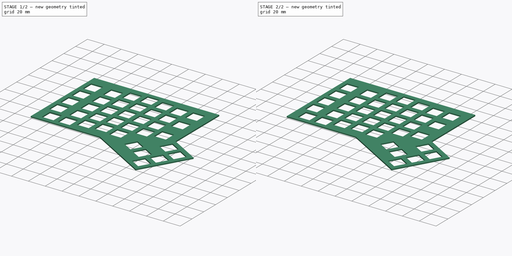
[diagram: build sequence overview — one tinted view per stage of 2, left to right]
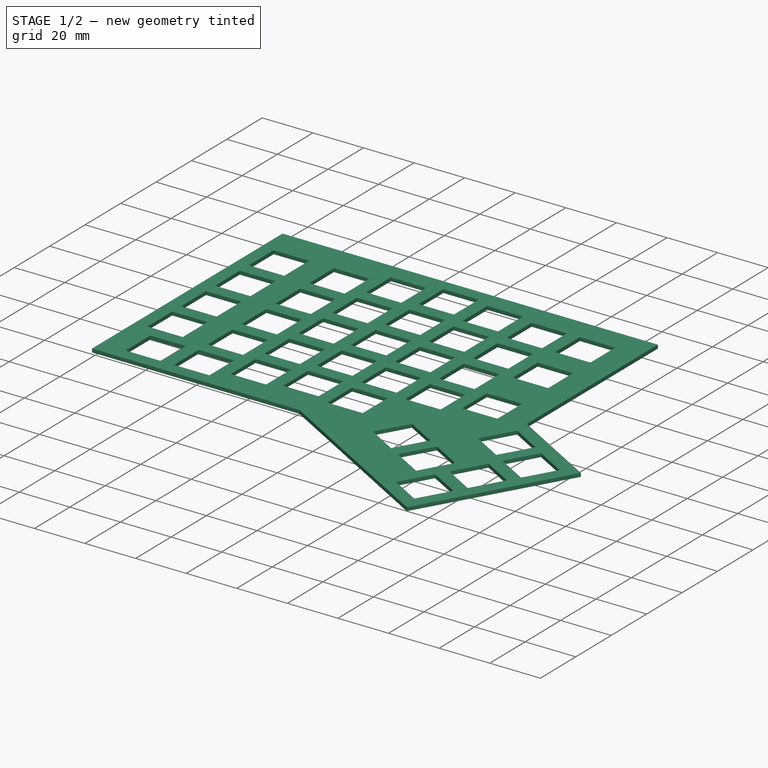
[diagram: stage 1 of 2 — iso view after this stage's code; geometry added in this stage tinted green]
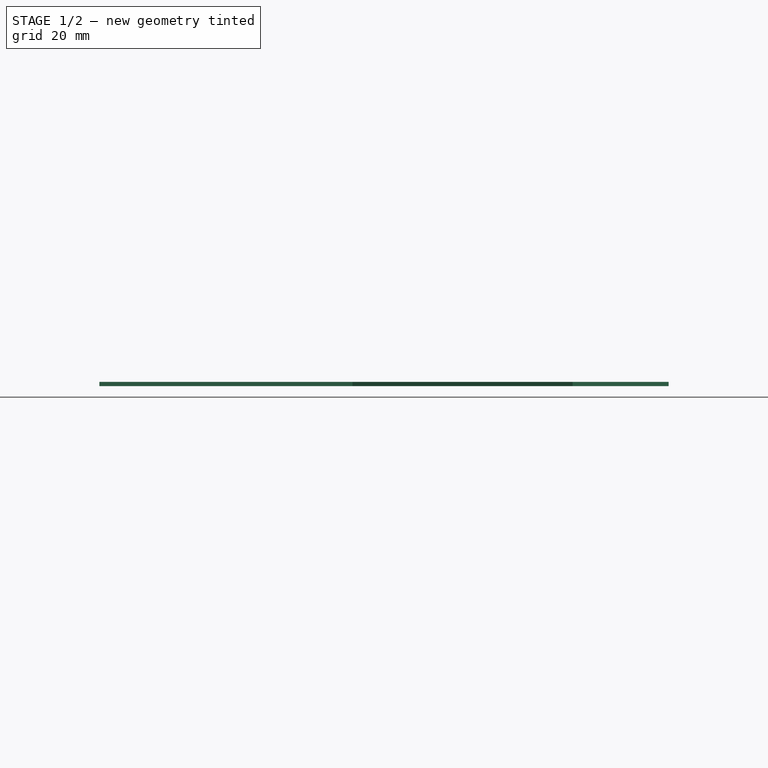
[diagram: stage 1 of 2 — front view after this stage's code; geometry added in this stage tinted green]
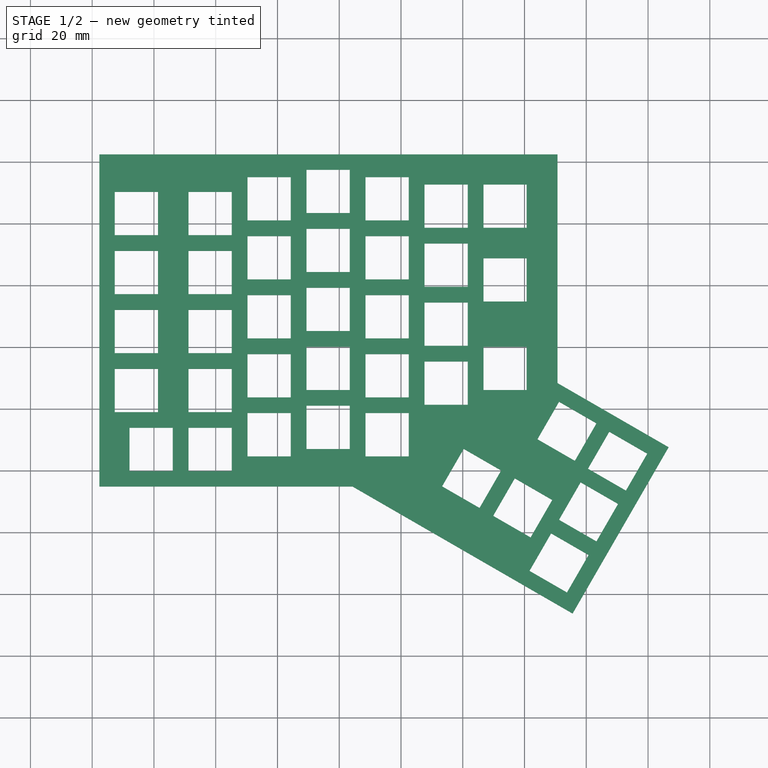
[diagram: stage 1 of 2 — top view after this stage's code; geometry added in this stage tinted green]
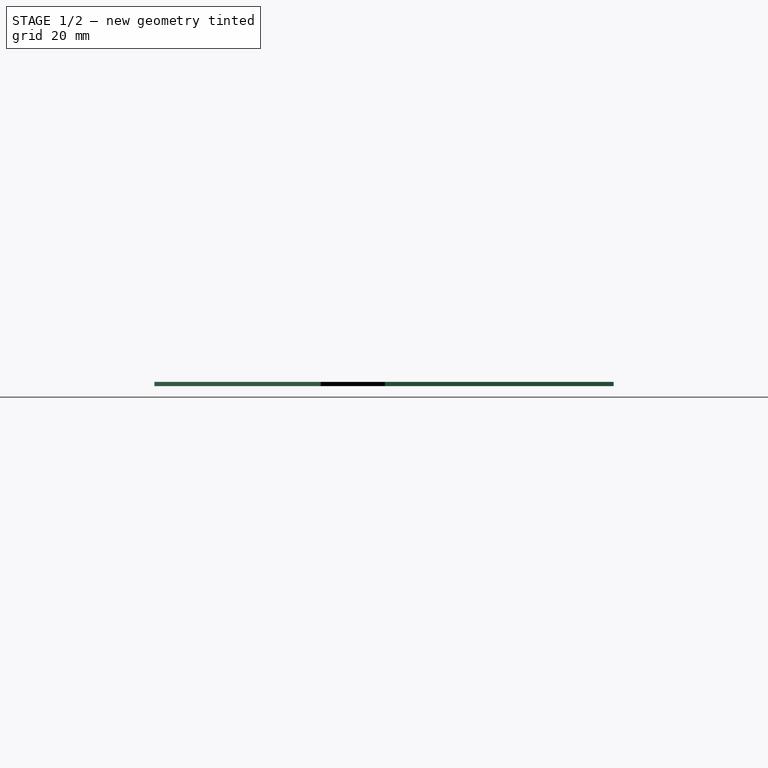
[diagram: stage 1 of 2 — right view after this stage's code; geometry added in this stage tinted green]
FCSTD DOCUMENT  (FreeCAD 1.0R39319 (Git))
Label: plate
License: All rights reserved
LicenseURL: https://en.wikipedia.org/wiki/All_rights_reserved
objects: Sketcher::SketchObject×4, Part::Extrusion×2, App::DocumentObjectGroupPython×1, PartDesign::Body×1
note: 11 computed .brp shape members not serialized (recipe doc carries the construction recipe); baked Part::Feature solids carry a one-line shape summary decoded from their .brp

FEATURE [Part::Extrusion] Extrude001
  Base = -> Sketch003
  Dir = (0,0,1)
  DirMode = 2
  FaceMakerClass = Part::FaceMakerBullseye
  FaceMakerMode = 3
  LengthFwd = 1.4
  LengthRev = 0
  Solid = true
  Symmetric = false
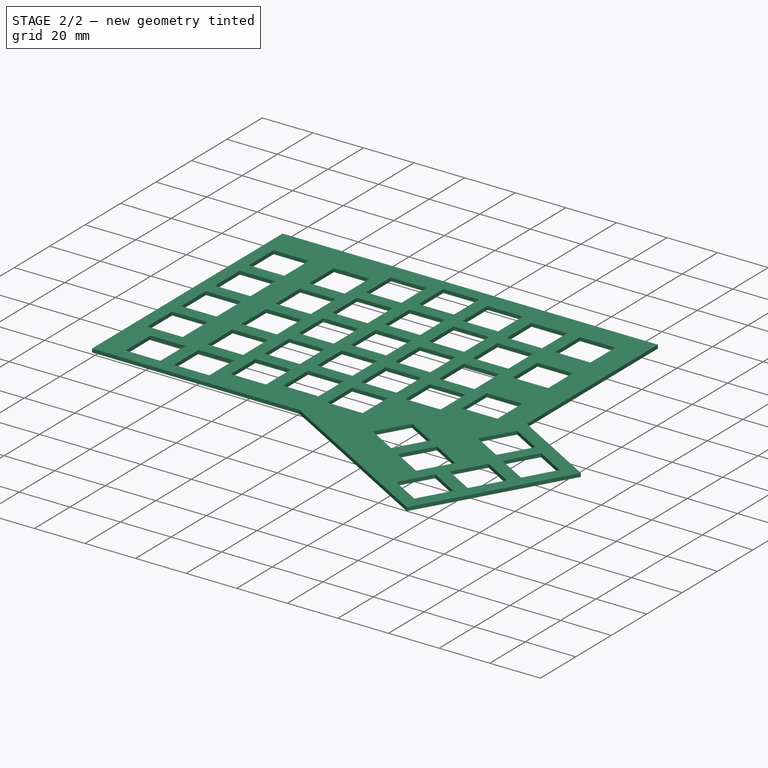
[diagram: stage 2 of 2 — iso view after this stage's code; geometry added in this stage tinted green]
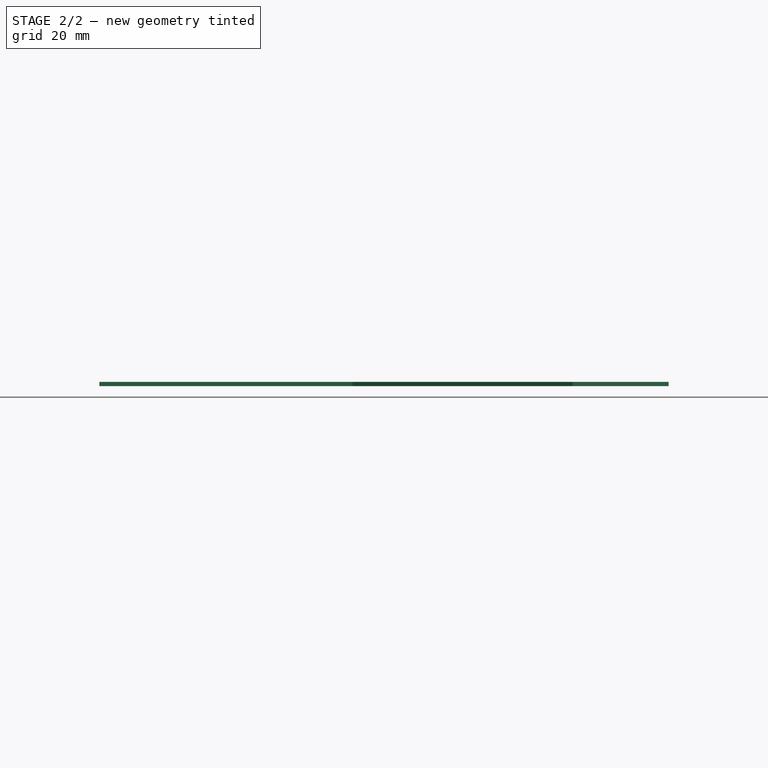
[diagram: stage 2 of 2 — front view after this stage's code; geometry added in this stage tinted green]
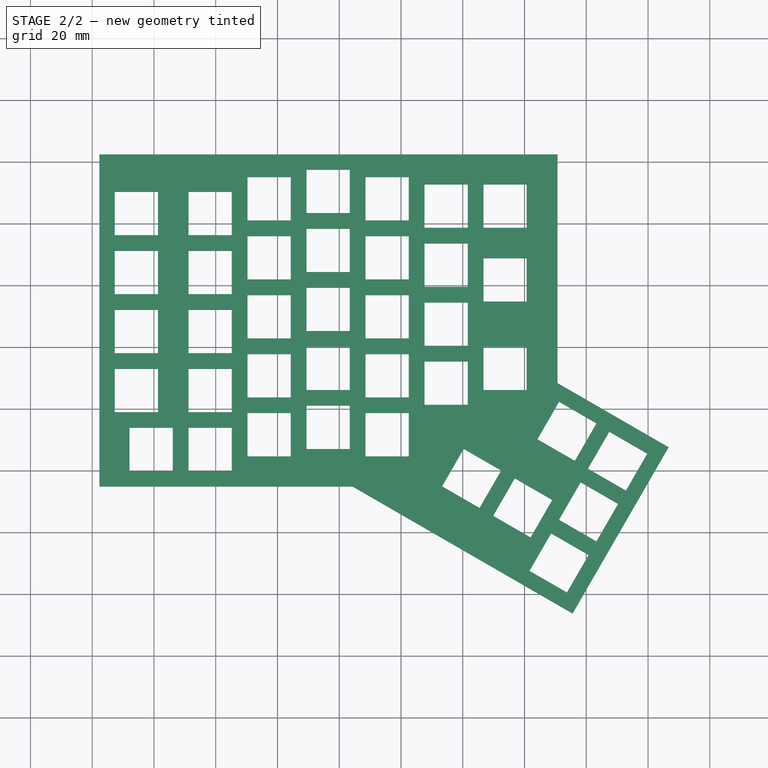
[diagram: stage 2 of 2 — top view after this stage's code; geometry added in this stage tinted green]
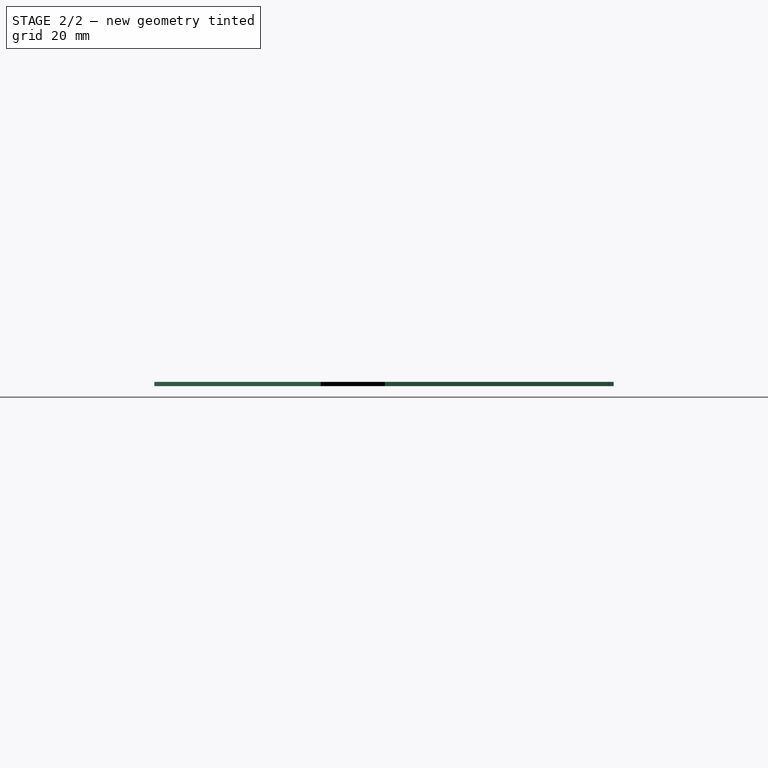
[diagram: stage 2 of 2 — right view after this stage's code; geometry added in this stage tinted green]
FEATURE [App::DocumentObjectGroupPython] LayerContainer  label="Layers"  # scripted group (container) (typed FeaturePython)
FEATURE [Sketcher::SketchObject] Sketch001  label="plate_reference"
  ArcFitTolerance = 1e-06
  FullyConstrained = false
  MakeInternals = false
  sketch-geometry (304):
    g0: BSplineCurve PolesCount=2 KnotsCount=2 Degree=1 IsPeriodic=0
    g1: BSplineCurve PolesCount=2 KnotsCount=2 Degree=1 IsPeriodic=0
    g2: BSplineCurve PolesCount=2 KnotsCount=2 Degree=1 IsPeriodic=0
    g3: BSplineCurve PolesCount=2 KnotsCount=2 Degree=1 IsPeriodic=0
    g4: BSplineCurve PolesCount=2 KnotsCount=2 Degree=1 IsPeriodic=0
    g5: BSplineCurve PolesCount=2 KnotsCount=2 Degree=1 IsPeriodic=0
    g6: BSplineCurve PolesCount=2 KnotsCount=2 Degree=1 IsPeriodic=0
    g7: BSplineCurve PolesCount=2 KnotsCount=2 Degree=1 IsPeriodic=0
    g8: BSplineCurve PolesCount=2 KnotsCount=2 Degree=1 IsPeriodic=0
    g9: BSplineCurve PolesCount=2 KnotsCount=2 Degree=1 IsPeriodic=0
    g10: BSplineCurve PolesCount=2 KnotsCount=2 Degree=1 IsPeriodic=0
    g11: BSplineCurve PolesCount=2 KnotsCount=2 Degree=1 IsPeriodic=0
    g12: BSplineCurve PolesCount=2 KnotsCount=2 Degree=1 IsPeriodic=0
    g13: BSplineCurve PolesCount=2 KnotsCount=2 Degree=1 IsPeriodic=0
    g14: BSplineCurve PolesCount=2 KnotsCount=2 Degree=1 IsPeriodic=0
    g15: BSplineCurve PolesCount=2 KnotsCount=2 Degree=1 IsPeriodic=0
    g16: BSplineCurve PolesCount=2 KnotsCount=2 Degree=1 IsPeriodic=0
    g17: BSplineCurve PolesCount=2 KnotsCount=2 Degree=1 IsPeriodic=0
    g18: BSplineCurve PolesCount=2 KnotsCount=2 Degree=1 IsPeriodic=0
    g19: BSplineCurve PolesCount=2 KnotsCount=2 Degree=1 IsPeriodic=0
    g20: BSplineCurve PolesCount=2 KnotsCount=2 Degree=1 IsPeriodic=0
    g21: BSplineCurve PolesCount=2 KnotsCount=2 Degree=1 IsPeriodic=0
    g22: BSplineCurve PolesCount=2 KnotsCount=2 Degree=1 IsPeriodic=0
    g23: BSplineCurve PolesCount=2 KnotsCount=2 Degree=1 IsPeriodic=0
    g24: BSplineCurve PolesCount=2 KnotsCount=2 Degree=1 IsPeriodic=0
    g25: BSplineCurve PolesCount=2 KnotsCount=2 Degree=1 IsPeriodic=0
    g26: BSplineCurve PolesCount=2 KnotsCount=2 Degree=1 IsPeriodic=0
    g27: BSplineCurve PolesCount=2 KnotsCount=2 Degree=1 IsPeriodic=0
    g28: BSplineCurve PolesCount=2 KnotsCount=2 Degree=1 IsPeriodic=0
    g29: BSplineCurve PolesCount=2 KnotsCount=2 Degree=1 IsPeriodic=0
    g30: BSplineCurve PolesCount=2 KnotsCount=2 Degree=1 IsPeriodic=0
    g31: BSplineCurve PolesCount=2 KnotsCount=2 Degree=1 IsPeriodic=0
    g32: BSplineCurve PolesCount=2 KnotsCount=2 Degree=1 IsPeriodic=0
    g33: BSplineCurve PolesCount=2 KnotsCount=2 Degree=1 IsPeriodic=0
    g34: BSplineCurve PolesCount=2 KnotsCount=2 Degree=1 IsPeriodic=0
    g35: BSplineCurve PolesCount=2 KnotsCount=2 Degree=1 IsPeriodic=0
    g36: BSplineCurve PolesCount=2 KnotsCount=2 Degree=1 IsPeriodic=0
    g37: BSplineCurve PolesCount=2 KnotsCount=2 Degree=1 IsPeriodic=0
    g38: BSplineCurve PolesCount=2 KnotsCount=2 Degree=1 IsPeriodic=0
    g39: BSplineCurve PolesCount=2 KnotsCount=2 Degree=1 IsPeriodic=0
    g40: BSplineCurve PolesCount=2 KnotsCount=2 Degree=1 IsPeriodic=0
    g41: BSplineCurve PolesCount=2 KnotsCount=2 Degree=1 IsPeriodic=0
    g42: BSplineCurve PolesCount=2 KnotsCount=2 Degree=1 IsPeriodic=0
    g43: BSplineCurve PolesCount=2 KnotsCount=2 Degree=1 IsPeriodic=0
    g44: BSplineCurve PolesCount=2 KnotsCount=2 Degree=1 IsPeriodic=0
    g45: BSplineCurve PolesCount=2 KnotsCount=2 Degree=1 IsPeriodic=0
    g46: BSplineCurve PolesCount=2 KnotsCount=2 Degree=1 IsPeriodic=0
    g47: BSplineCurve PolesCount=2 KnotsCount=2 Degree=1 IsPeriodic=0
    g48: BSplineCurve PolesCount=2 KnotsCount=2 Degree=1 IsPeriodic=0
    g49: BSplineCurve PolesCount=2 KnotsCount=2 Degree=1 IsPeriodic=0
    g50: BSplineCurve PolesCount=2 KnotsCount=2 Degree=1 IsPeriodic=0
    g51: BSplineCurve PolesCount=2 KnotsCount=2 Degree=1 IsPeriodic=0
    g52: BSplineCurve PolesCount=2 KnotsCount=2 Degree=1 IsPeriodic=0
    g53: BSplineCurve PolesCount=2 KnotsCount=2 Degree=1 IsPeriodic=0
    g54: BSplineCurve PolesCount=2 KnotsCount=2 Degree=1 IsPeriodic=0
    g55: BSplineCurve PolesCount=2 KnotsCount=2 Degree=1 IsPeriodic=0
    g56: BSplineCurve PolesCount=2 KnotsCount=2 Degree=1 IsPeriodic=0
    g57: BSplineCurve PolesCount=2 KnotsCount=2 Degree=1 IsPeriodic=0
    g58: BSplineCurve PolesCount=2 KnotsCount=2 Degree=1 IsPeriodic=0
    g59: BSplineCurve PolesCount=2 KnotsCount=2 Degree=1 IsPeriodic=0
    g60: BSplineCurve PolesCount=2 KnotsCount=2 Degree=1 IsPeriodic=0
    g61: BSplineCurve PolesCount=2 KnotsCount=2 Degree=1 IsPeriodic=0
    g62: BSplineCurve PolesCount=2 KnotsCount=2 Degree=1 IsPeriodic=0
    g63: BSplineCurve PolesCount=2 KnotsCount=2 Degree=1 IsPeriodic=0
    g64: BSplineCurve PolesCount=2 KnotsCount=2 Degree=1 IsPeriodic=0
    g65: BSplineCurve PolesCount=2 KnotsCount=2 Degree=1 IsPeriodic=0
    g66: BSplineCurve PolesCount=2 KnotsCount=2 Degree=1 IsPeriodic=0
    g67: BSplineCurve PolesCount=2 KnotsCount=2 Degree=1 IsPeriodic=0
    g68: BSplineCurve PolesCount=2 KnotsCount=2 Degree=1 IsPeriodic=0
    g69: BSplineCurve PolesCount=2 KnotsCount=2 Degree=1 IsPeriodic=0
    g70: BSplineCurve PolesCount=2 KnotsCount=2 Degree=1 IsPeriodic=0
    g71: BSplineCurve PolesCount=2 KnotsCount=2 Degree=1 IsPeriodic=0
    g72: BSplineCurve PolesCount=2 KnotsCount=2 Degree=1 IsPeriodic=0
    g73: BSplineCurve PolesCount=2 KnotsCount=2 Degree=1 IsPeriodic=0
    g74: BSplineCurve PolesCount=2 KnotsCount=2 Degree=1 IsPeriodic=0
    g75: BSplineCurve PolesCount=2 KnotsCount=2 Degree=1 IsPeriodic=0
    g76: BSplineCurve PolesCount=2 KnotsCount=2 Degree=1 IsPeriodic=0
    g77: BSplineCurve PolesCount=2 KnotsCount=2 Degree=1 IsPeriodic=0
    g78: BSplineCurve PolesCount=2 KnotsCount=2 Degree=1 IsPeriodic=0
    g79: BSplineCurve PolesCount=2 KnotsCount=2 Degree=1 IsPeriodic=0
    g80: BSplineCurve PolesCount=2 KnotsCount=2 Degree=1 IsPeriodic=0
    g81: BSplineCurve PolesCount=2 KnotsCount=2 Degree=1 IsPeriodic=0
    g82: BSplineCurve PolesCount=2 KnotsCount=2 Degree=1 IsPeriodic=0
    g83: BSplineCurve PolesCount=2 KnotsCount=2 Degree=1 IsPeriodic=0
    g84: BSplineCurve PolesCount=2 KnotsCount=2 Degree=1 IsPeriodic=0
    g85: BSplineCurve PolesCount=2 KnotsCount=2 Degree=1 IsPeriodic=0
    g86: BSplineCurve PolesCount=2 KnotsCount=2 Degree=1 IsPeriodic=0
    g87: BSplineCurve PolesCount=2 KnotsCount=2 Degree=1 IsPeriodic=0
    g88: BSplineCurve PolesCount=2 KnotsCount=2 Degree=1 IsPeriodic=0
    g89: BSplineCurve PolesCount=2 KnotsCount=2 Degree=1 IsPeriodic=0
    g90: BSplineCurve PolesCount=2 KnotsCount=2 Degree=1 IsPeriodic=0
    g91: BSplineCurve PolesCount=2 KnotsCount=2 Degree=1 IsPeriodic=0
    g92: BSplineCurve PolesCount=2 KnotsCount=2 Degree=1 IsPeriodic=0
    g93: BSplineCurve PolesCount=2 KnotsCount=2 Degree=1 IsPeriodic=0
    g94: BSplineCurve PolesCount=2 KnotsCount=2 Degree=1 IsPeriodic=0
    g95: BSplineCurve PolesCount=2 KnotsCount=2 Degree=1 IsPeriodic=0
    g96: BSplineCurve PolesCount=2 KnotsCount=2 Degree=1 IsPeriodic=0
    g97: BSplineCurve PolesCount=2 KnotsCount=2 Degree=1 IsPeriodic=0
    g98: BSplineCurve PolesCount=2 KnotsCount=2 Degree=1 IsPeriodic=0
    g99: BSplineCurve PolesCount=2 KnotsCount=2 Degree=1 IsPeriodic=0
    g100: BSplineCurve PolesCount=2 KnotsCount=2 Degree=1 IsPeriodic=0
    g101: BSplineCurve PolesCount=2 KnotsCount=2 Degree=1 IsPeriodic=0
    g102: BSplineCurve PolesCount=2 KnotsCount=2 Degree=1 IsPeriodic=0
    g103: BSplineCurve PolesCount=2 KnotsCount=2 Degree=1 IsPeriodic=0
    g104: BSplineCurve PolesCount=2 KnotsCount=2 Degree=1 IsPeriodic=0
    g105: BSplineCurve PolesCount=2 KnotsCount=2 Degree=1 IsPeriodic=0
    g106: BSplineCurve PolesCount=2 KnotsCount=2 Degree=1 IsPeriodic=0
    g107: BSplineCurve PolesCount=2 KnotsCount=2 Degree=1 IsPeriodic=0
    g108: BSplineCurve PolesCount=2 KnotsCount=2 Degree=1 IsPeriodic=0
    g109: BSplineCurve PolesCount=2 KnotsCount=2 Degree=1 IsPeriodic=0
    g110: BSplineCurve PolesCount=2 KnotsCount=2 Degree=1 IsPeriodic=0
    g111: BSplineCurve PolesCount=2 KnotsCount=2 Degree=1 IsPeriodic=0
    g112: BSplineCurve PolesCount=2 KnotsCount=2 Degree=1 IsPeriodic=0
    g113: BSplineCurve PolesCount=2 KnotsCount=2 Degree=1 IsPeriodic=0
    g114: BSplineCurve PolesCount=2 KnotsCount=2 Degree=1 IsPeriodic=0
    g115: BSplineCurve PolesCount=2 KnotsCount=2 Degree=1 IsPeriodic=0
    g116: BSplineCurve PolesCount=2 KnotsCount=2 Degree=1 IsPeriodic=0
    g117: BSplineCurve PolesCount=2 KnotsCount=2 Degree=1 IsPeriodic=0
    g118: BSplineCurve PolesCount=2 KnotsCount=2 Degree=1 IsPeriodic=0
    g119: BSplineCurve PolesCount=2 KnotsCount=2 Degree=1 IsPeriodic=0
    g120: BSplineCurve PolesCount=2 KnotsCount=2 Degree=1 IsPeriodic=0
    g121: BSplineCurve PolesCount=2 KnotsCount=2 Degree=1 IsPeriodic=0
    g122: BSplineCurve PolesCount=2 KnotsCount=2 Degree=1 IsPeriodic=0
    g123: BSplineCurve PolesCount=2 KnotsCount=2 Degree=1 IsPeriodic=0
    g124: BSplineCurve PolesCount=2 KnotsCount=2 Degree=1 IsPeriodic=0
    g125: BSplineCurve PolesCount=2 KnotsCount=2 Degree=1 IsPeriodic=0
    g126: BSplineCurve PolesCount=2 KnotsCount=2 Degree=1 IsPeriodic=0
    g127: BSplineCurve PolesCount=2 KnotsCount=2 Degree=1 IsPeriodic=0
    g128: BSplineCurve PolesCount=2 KnotsCount=2 Degree=1 IsPeriodic=0
    g129: BSplineCurve PolesCount=2 KnotsCount=2 Degree=1 IsPeriodic=0
    g130: BSplineCurve PolesCount=2 KnotsCount=2 Degree=1 IsPeriodic=0
    g131: BSplineCurve PolesCount=2 KnotsCount=2 Degree=1 IsPeriodic=0
    g132: BSplineCurve PolesCount=2 KnotsCount=2 Degree=1 IsPeriodic=0
    g133: BSplineCurve PolesCount=2 KnotsCount=2 Degree=1 IsPeriodic=0
    g134: BSplineCurve PolesCount=2 KnotsCount=2 Degree=1 IsPeriodic=0
    g135: BSplineCurve PolesCount=2 KnotsCount=2 Degree=1 IsPeriodic=0
    g136: BSplineCurve PolesCount=2 KnotsCount=2 Degree=1 IsPeriodic=0
    g137: BSplineCurve PolesCount=2 KnotsCount=2 Degree=1 IsPeriodic=0
    g138: BSplineCurve PolesCount=2 KnotsCount=2 Degree=1 IsPeriodic=0
    g139: BSplineCurve PolesCount=2 KnotsCount=2 Degree=1 IsPeriodic=0
    g140: BSplineCurve PolesCount=2 KnotsCount=2 Degree=1 IsPeriodic=0
    g141: BSplineCurve PolesCount=2 KnotsCount=2 Degree=1 IsPeriodic=0
    g142: BSplineCurve PolesCount=2 KnotsCount=2 Degree=1 IsPeriodic=0
    g143: BSplineCurve PolesCount=2 KnotsCount=2 Degree=1 IsPeriodic=0
    g144: BSplineCurve PolesCount=2 KnotsCount=2 Degree=1 IsPeriodic=0
    g145: BSplineCurve PolesCount=2 KnotsCount=2 Degree=1 IsPeriodic=0
    g146: BSplineCurve PolesCount=2 KnotsCount=2 Degree=1 IsPeriodic=0
    g147: BSplineCurve PolesCount=2 KnotsCount=2 Degree=1 IsPeriodic=0
    g148: BSplineCurve PolesCount=2 KnotsCount=2 Degree=1 IsPeriodic=0
    g149: BSplineCurve PolesCount=2 KnotsCount=2 Degree=1 IsPeriodic=0
    g150: BSplineCurve PolesCount=2 KnotsCount=2 Degree=1 IsPeriodic=0
    g151: BSplineCurve PolesCount=2 KnotsCount=2 Degree=1 IsPeriodic=0
    g152: BSplineCurve PolesCount=2 KnotsCount=2 Degree=1 IsPeriodic=0
    g153: BSplineCurve PolesCount=2 KnotsCount=2 Degree=1 IsPeriodic=0
    g154: BSplineCurve PolesCount=2 KnotsCount=2 Degree=1 IsPeriodic=0
    g155: BSplineCurve PolesCount=2 KnotsCount=2 Degree=1 IsPeriodic=0
    g156: BSplineCurve PolesCount=2 KnotsCount=2 Degree=1 IsPeriodic=0
    g157: BSplineCurve PolesCount=2 KnotsCount=2 Degree=1 IsPeriodic=0
    g158: BSplineCurve PolesCount=2 KnotsCount=2 Degree=1 IsPeriodic=0
    g159: BSplineCurve PolesCount=2 KnotsCount=2 Degree=1 IsPeriodic=0
    g160: BSplineCurve PolesCount=2 KnotsCount=2 Degree=1 IsPeriodic=0
    g161: BSplineCurve PolesCount=2 KnotsCount=2 Degree=1 IsPeriodic=0
    g162: BSplineCurve PolesCount=2 KnotsCount=2 Degree=1 IsPeriodic=0
    g163: BSplineCurve PolesCount=2 KnotsCount=2 Degree=1 IsPeriodic=0
    g164: BSplineCurve PolesCount=2 KnotsCount=2 Degree=1 IsPeriodic=0
    g165: BSplineCurve PolesCount=2 KnotsCount=2 Degree=1 IsPeriodic=0
    g166: BSplineCurve PolesCount=2 KnotsCount=2 Degree=1 IsPeriodic=0
    g167: BSplineCurve PolesCount=2 KnotsCount=2 Degree=1 IsPeriodic=0
    g168: BSplineCurve PolesCount=2 KnotsCount=2 Degree=1 IsPeriodic=0
    g169: BSplineCurve PolesCount=2 KnotsCount=2 Degree=1 IsPeriodic=0
    g170: BSplineCurve PolesCount=2 KnotsCount=2 Degree=1 IsPeriodic=0
    g171: BSplineCurve PolesCount=2 KnotsCount=2 Degree=1 IsPeriodic=0
    g172: BSplineCurve PolesCount=2 KnotsCount=2 Degree=1 IsPeriodic=0
    g173: BSplineCurve PolesCount=2 KnotsCount=2 Degree=1 IsPeriodic=0
    g174: BSplineCurve PolesCount=2 KnotsCount=2 Degree=1 IsPeriodic=0
    g175: BSplineCurve PolesCount=2 KnotsCount=2 Degree=1 IsPeriodic=0
    g176: BSplineCurve PolesCount=2 KnotsCount=2 Degree=1 IsPeriodic=0
    g177: BSplineCurve PolesCount=2 KnotsCount=2 Degree=1 IsPeriodic=0
    g178: BSplineCurve PolesCount=2 KnotsCount=2 Degree=1 IsPeriodic=0
    g179: BSplineCurve PolesCount=2 KnotsCount=2 Degree=1 IsPeriodic=0
    g180: BSplineCurve PolesCount=2 KnotsCount=2 Degree=1 IsPeriodic=0
    g181: BSplineCurve PolesCount=2 KnotsCount=2 Degree=1 IsPeriodic=0
    g182: BSplineCurve PolesCount=2 KnotsCount=2 Degree=1 IsPeriodic=0
    g183: BSplineCurve PolesCount=2 KnotsCount=2 Degree=1 IsPeriodic=0
    g184: BSplineCurve PolesCount=2 KnotsCount=2 Degree=1 IsPeriodic=0
    g185: BSplineCurve PolesCount=2 KnotsCount=2 Degree=1 IsPeriodic=0
    g186: BSplineCurve PolesCount=2 KnotsCount=2 Degree=1 IsPeriodic=0
    g187: BSplineCurve PolesCount=2 KnotsCount=2 Degree=1 IsPeriodic=0
    g188: BSplineCurve PolesCount=2 KnotsCount=2 Degree=1 IsPeriodic=0
    g189: BSplineCurve PolesCount=2 KnotsCount=2 Degree=1 IsPeriodic=0
    g190: BSplineCurve PolesCount=2 KnotsCount=2 Degree=1 IsPeriodic=0
    g191: BSplineCurve PolesCount=2 KnotsCount=2 Degree=1 IsPeriodic=0
    g192: BSplineCurve PolesCount=2 KnotsCount=2 Degree=1 IsPeriodic=0
    g193: BSplineCurve PolesCount=2 KnotsCount=2 Degree=1 IsPeriodic=0
    g194: BSplineCurve PolesCount=2 KnotsCount=2 Degree=1 IsPeriodic=0
    g195: BSplineCurve PolesCount=2 KnotsCount=2 Degree=1 IsPeriodic=0
    g196: BSplineCurve PolesCount=2 KnotsCount=2 Degree=1 IsPeriodic=0
    g197: BSplineCurve PolesCount=2 KnotsCount=2 Degree=1 IsPeriodic=0
    g198: BSplineCurve PolesCount=2 KnotsCount=2 Degree=1 IsPeriodic=0
    g199: BSplineCurve PolesCount=2 KnotsCount=2 Degree=1 IsPeriodic=0
    g200: BSplineCurve PolesCount=2 KnotsCount=2 Degree=1 IsPeriodic=0
    g201: BSplineCurve PolesCount=2 KnotsCount=2 Degree=1 IsPeriodic=0
    g202: BSplineCurve PolesCount=2 KnotsCount=2 Degree=1 IsPeriodic=0
    g203: BSplineCurve PolesCount=2 KnotsCount=2 Degree=1 IsPeriodic=0
    g204: BSplineCurve PolesCount=2 KnotsCount=2 Degree=1 IsPeriodic=0
    g205: BSplineCurve PolesCount=2 KnotsCount=2 Degree=1 IsPeriodic=0
    g206: BSplineCurve PolesCount=2 KnotsCount=2 Degree=1 IsPeriodic=0
    g207: BSplineCurve PolesCount=2 KnotsCount=2 Degree=1 IsPeriodic=0
    g208: BSplineCurve PolesCount=2 KnotsCount=2 Degree=1 IsPeriodic=0
    g209: BSplineCurve PolesCount=2 KnotsCount=2 Degree=1 IsPeriodic=0
    g210: BSplineCurve PolesCount=2 KnotsCount=2 Degree=1 IsPeriodic=0
    g211: BSplineCurve PolesCount=2 KnotsCount=2 Degree=1 IsPeriodic=0
    g212: BSplineCurve PolesCount=2 KnotsCount=2 Degree=1 IsPeriodic=0
    g213: BSplineCurve PolesCount=2 KnotsCount=2 Degree=1 IsPeriodic=0
    g214: BSplineCurve PolesCount=2 KnotsCount=2 Degree=1 IsPeriodic=0
    g215: BSplineCurve PolesCount=2 KnotsCount=2 Degree=1 IsPeriodic=0
    g216: BSplineCurve PolesCount=2 KnotsCount=2 Degree=1 IsPeriodic=0
    g217: BSplineCurve PolesCount=2 KnotsCount=2 Degree=1 IsPeriodic=0
    g218: BSplineCurve PolesCount=2 KnotsCount=2 Degree=1 IsPeriodic=0
    g219: BSplineCurve PolesCount=2 KnotsCount=2 Degree=1 IsPeriodic=0
    g220: BSplineCurve PolesCount=2 KnotsCount=2 Degree=1 IsPeriodic=0
    g221: BSplineCurve PolesCount=2 KnotsCount=2 Degree=1 IsPeriodic=0
    g222: BSplineCurve PolesCount=2 KnotsCount=2 Degree=1 IsPeriodic=0
    g223: BSplineCurve PolesCount=2 KnotsCount=2 Degree=1 IsPeriodic=0
    g224: BSplineCurve PolesCount=2 KnotsCount=2 Degree=1 IsPeriodic=0
    g225: BSplineCurve PolesCount=2 KnotsCount=2 Degree=1 IsPeriodic=0
    g226: BSplineCurve PolesCount=2 KnotsCount=2 Degree=1 IsPeriodic=0
    g227: BSplineCurve PolesCount=2 KnotsCount=2 Degree=1 IsPeriodic=0
    g228: BSplineCurve PolesCount=2 KnotsCount=2 Degree=1 IsPeriodic=0
    g229: BSplineCurve PolesCount=2 KnotsCount=2 Degree=1 IsPeriodic=0
    g230: BSplineCurve PolesCount=2 KnotsCount=2 Degree=1 IsPeriodic=0
    g231: BSplineCurve PolesCount=2 KnotsCount=2 Degree=1 IsPeriodic=0
    g232: BSplineCurve PolesCount=2 KnotsCount=2 Degree=1 IsPeriodic=0
    g233: BSplineCurve PolesCount=2 KnotsCount=2 Degree=1 IsPeriodic=0
    g234: BSplineCurve PolesCount=2 KnotsCount=2 Degree=1 IsPeriodic=0
    g235: BSplineCurve PolesCount=2 KnotsCount=2 Degree=1 IsPeriodic=0
    g236: BSplineCurve PolesCount=2 KnotsCount=2 Degree=1 IsPeriodic=0
    g237: BSplineCurve PolesCount=2 KnotsCount=2 Degree=1 IsPeriodic=0
    g238: BSplineCurve PolesCount=2 KnotsCount=2 Degree=1 IsPeriodic=0
    g239: BSplineCurve PolesCount=2 KnotsCount=2 Degree=1 IsPeriodic=0
    g240: BSplineCurve PolesCount=2 KnotsCount=2 Degree=1 IsPeriodic=0
    g241: BSplineCurve PolesCount=2 KnotsCount=2 Degree=1 IsPeriodic=0
    g242: BSplineCurve PolesCount=2 KnotsCount=2 Degree=1 IsPeriodic=0
    g243: BSplineCurve PolesCount=2 KnotsCount=2 Degree=1 IsPeriodic=0
    g244: BSplineCurve PolesCount=2 KnotsCount=2 Degree=1 IsPeriodic=0
    g245: BSplineCurve PolesCount=2 KnotsCount=2 Degree=1 IsPeriodic=0
    g246: BSplineCurve PolesCount=2 KnotsCount=2 Degree=1 IsPeriodic=0
    g247: BSplineCurve PolesCount=2 KnotsCount=2 Degree=1 IsPeriodic=0
    g248: BSplineCurve PolesCount=2 KnotsCount=2 Degree=1 IsPeriodic=0
    g249: BSplineCurve PolesCount=2 KnotsCount=2 Degree=1 IsPeriodic=0
    g250: BSplineCurve PolesCount=2 KnotsCount=2 Degree=1 IsPeriodic=0
    g251: BSplineCurve PolesCount=2 KnotsCount=2 Degree=1 IsPeriodic=0
    g252: BSplineCurve PolesCount=2 KnotsCount=2 Degree=1 IsPeriodic=0
    g253: BSplineCurve PolesCount=2 KnotsCount=2 Degree=1 IsPeriodic=0
    g254: BSplineCurve PolesCount=2 KnotsCount=2 Degree=1 IsPeriodic=0
    g255: BSplineCurve PolesCount=2 KnotsCount=2 Degree=1 IsPeriodic=0
    g256: BSplineCurve PolesCount=2 KnotsCount=2 Degree=1 IsPeriodic=0
    g257: BSplineCurve PolesCount=2 KnotsCount=2 Degree=1 IsPeriodic=0
    g258: BSplineCurve PolesCount=2 KnotsCount=2 Degree=1 IsPeriodic=0
    g259: BSplineCurve PolesCount=2 KnotsCount=2 Degree=1 IsPeriodic=0
    g260: BSplineCurve PolesCount=2 KnotsCount=2 Degree=1 IsPeriodic=0
    g261: BSplineCurve PolesCount=2 KnotsCount=2 Degree=1 IsPeriodic=0
    g262: BSplineCurve PolesCount=2 KnotsCount=2 Degree=1 IsPeriodic=0
    g263: BSplineCurve PolesCount=2 KnotsCount=2 Degree=1 IsPeriodic=0
    g264: BSplineCurve PolesCount=2 KnotsCount=2 Degree=1 IsPeriodic=0
    g265: BSplineCurve PolesCount=2 KnotsCount=2 Degree=1 IsPeriodic=0
    g266: BSplineCurve PolesCount=2 KnotsCount=2 Degree=1 IsPeriodic=0
    g267: BSplineCurve PolesCount=2 KnotsCount=2 Degree=1 IsPeriodic=0
    g268: BSplineCurve PolesCount=2 KnotsCount=2 Degree=1 IsPeriodic=0
    g269: BSplineCurve PolesCount=2 KnotsCount=2 Degree=1 IsPeriodic=0
    g270: BSplineCurve PolesCount=2 KnotsCount=2 Degree=1 IsPeriodic=0
    g271: BSplineCurve PolesCount=2 KnotsCount=2 Degree=1 IsPeriodic=0
    g272: BSplineCurve PolesCount=2 KnotsCount=2 Degree=1 IsPeriodic=0
    g273: BSplineCurve PolesCount=2 KnotsCount=2 Degree=1 IsPeriodic=0
    g274: BSplineCurve PolesCount=2 KnotsCount=2 Degree=1 IsPeriodic=0
    g275: BSplineCurve PolesCount=2 KnotsCount=2 Degree=1 IsPeriodic=0
    g276: BSplineCurve PolesCount=2 KnotsCount=2 Degree=1 IsPeriodic=0
    g277: BSplineCurve PolesCount=2 KnotsCount=2 Degree=1 IsPeriodic=0
    g278: BSplineCurve PolesCount=2 KnotsCount=2 Degree=1 IsPeriodic=0
    g279: BSplineCurve PolesCount=2 KnotsCount=2 Degree=1 IsPeriodic=0
    g280: BSplineCurve PolesCount=2 KnotsCount=2 Degree=1 IsPeriodic=0
    g281: BSplineCurve PolesCount=2 KnotsCount=2 Degree=1 IsPeriodic=0
    g282: BSplineCurve PolesCount=2 KnotsCount=2 Degree=1 IsPeriodic=0
    g283: BSplineCurve PolesCount=2 KnotsCount=2 Degree=1 IsPeriodic=0
    g284: BSplineCurve PolesCount=2 KnotsCount=2 Degree=1 IsPeriodic=0
    g285: BSplineCurve PolesCount=2 KnotsCount=2 Degree=1 IsPeriodic=0
    g286: BSplineCurve PolesCount=2 KnotsCount=2 Degree=1 IsPeriodic=0
    g287: BSplineCurve PolesCount=2 KnotsCount=2 Degree=1 IsPeriodic=0
    g288: BSplineCurve PolesCount=2 KnotsCount=2 Degree=1 IsPeriodic=0
    g289: BSplineCurve PolesCount=2 KnotsCount=2 Degree=1 IsPeriodic=0
    g290: BSplineCurve PolesCount=2 KnotsCount=2 Degree=1 IsPeriodic=0
    g291: BSplineCurve PolesCount=2 KnotsCount=2 Degree=1 IsPeriodic=0
    g292: BSplineCurve PolesCount=2 KnotsCount=2 Degree=1 IsPeriodic=0
    g293: BSplineCurve PolesCount=2 KnotsCount=2 Degree=1 IsPeriodic=0
    g294: BSplineCurve PolesCount=2 KnotsCount=2 Degree=1 IsPeriodic=0
    g295: BSplineCurve PolesCount=2 KnotsCount=2 Degree=1 IsPeriodic=0
    g296: BSplineCurve PolesCount=2 KnotsCount=2 Degree=1 IsPeriodic=0
    g297: BSplineCurve PolesCount=2 KnotsCount=2 Degree=1 IsPeriodic=0
    g298: BSplineCurve PolesCount=2 KnotsCount=2 Degree=1 IsPeriodic=0
    g299: BSplineCurve PolesCount=2 KnotsCount=2 Degree=1 IsPeriodic=0
    g300: BSplineCurve PolesCount=2 KnotsCount=2 Degree=1 IsPeriodic=0
    g301: BSplineCurve PolesCount=2 KnotsCount=2 Degree=1 IsPeriodic=0
    g302: BSplineCurve PolesCount=2 KnotsCount=2 Degree=1 IsPeriodic=0
    g303: BSplineCurve PolesCount=2 KnotsCount=2 Degree=1 IsPeriodic=0
  constraints (304):
    c: Coincident(g0,g1)
    c: Coincident(g1,g2)
    c: Coincident(g2,g3)
    c: Coincident(g3,g0)
    c: Coincident(g4,g5)
    c: Coincident(g5,g6)
    c: Coincident(g6,g7)
    c: Coincident(g7,g4)
    c: Coincident(g8,g9)
    c: Coincident(g9,g10)
    c: Coincident(g10,g11)
    c: Coincident(g11,g8)
    c: Coincident(g12,g13)
    c: Coincident(g13,g14)
    c: Coincident(g14,g15)
    c: Coincident(g15,g12)
    c: Coincident(g16,g17)
    c: Coincident(g17,g18)
    c: Coincident(g18,g19)
    c: Coincident(g19,g16)
    c: Coincident(g20,g21)
    c: Coincident(g21,g22)
    c: Coincident(g22,g23)
    c: Coincident(g23,g20)
    c: Coincident(g24,g25)
    c: Coincident(g25,g26)
    c: Coincident(g26,g27)
    c: Coincident(g27,g24)
    c: Coincident(g28,g29)
    c: Coincident(g29,g30)
    c: Coincident(g30,g31)
    c: Coincident(g31,g28)
    c: Coincident(g32,g33)
    c: Coincident(g33,g34)
    c: Coincident(g34,g35)
    c: Coincident(g35,g32)
    c: Coincident(g36,g37)
    c: Coincident(g37,g38)
    c: Coincident(g38,g39)
    c: Coincident(g39,g36)
    c: Coincident(g40,g41)
    c: Coincident(g41,g42)
    c: Coincident(g42,g43)
    c: Coincident(g43,g40)
    c: Coincident(g44,g45)
    c: Coincident(g45,g46)
    c: Coincident(g46,g47)
    c: Coincident(g47,g44)
    c: Coincident(g48,g49)
    c: Coincident(g49,g50)
    c: Coincident(g50,g51)
    c: Coincident(g51,g48)
    c: Coincident(g52,g53)
    c: Coincident(g53,g54)
    c: Coincident(g54,g55)
    c: Coincident(g55,g52)
    c: Coincident(g56,g57)
    c: Coincident(g57,g58)
    c: Coincident(g58,g59)
    c: Coincident(g59,g56)
    c: Coincident(g60,g61)
    c: Coincident(g61,g62)
    c: Coincident(g62,g63)
    c: Coincident(g63,g60)
    c: Coincident(g64,g65)
    c: Coincident(g65,g66)
    c: Coincident(g66,g67)
    c: Coincident(g67,g64)
    c: Coincident(g68,g69)
    c: Coincident(g69,g70)
    c: Coincident(g70,g71)
    c: Coincident(g71,g68)
    c: Coincident(g72,g73)
    c: Coincident(g73,g74)
    c: Coincident(g74,g75)
    c: Coincident(g75,g72)
    c: Coincident(g76,g77)
    c: Coincident(g77,g78)
    c: Coincident(g78,g79)
    c: Coincident(g79,g76)
    c: Coincident(g80,g81)
    c: Coincident(g81,g82)
    c: Coincident(g82,g83)
    c: Coincident(g83,g80)
    c: Coincident(g84,g85)
    c: Coincident(g85,g86)
    c: Coincident(g86,g87)
    c: Coincident(g87,g84)
    c: Coincident(g88,g89)
    c: Coincident(g89,g90)
    c: Coincident(g90,g91)
    c: Coincident(g91,g88)
    c: Coincident(g92,g93)
    c: Coincident(g93,g94)
    c: Coincident(g94,g95)
    c: Coincident(g95,g92)
    c: Coincident(g96,g97)
    c: Coincident(g97,g98)
    c: Coincident(g98,g99)
    c: Coincident(g99,g96)
    c: Coincident(g100,g101)
    c: Coincident(g101,g102)
    c: Coincident(g102,g103)
    c: Coincident(g103,g100)
    c: Coincident(g104,g105)
    c: Coincident(g105,g106)
    c: Coincident(g106,g107)
    c: Coincident(g107,g104)
    c: Coincident(g108,g109)
    c: Coincident(g109,g110)
    c: Coincident(g110,g111)
    c: Coincident(g111,g108)
    c: Coincident(g112,g113)
    c: Coincident(g113,g114)
    c: Coincident(g114,g115)
    c: Coincident(g115,g112)
    c: Coincident(g116,g117)
    c: Coincident(g117,g118)
    c: Coincident(g118,g119)
    c: Coincident(g119,g116)
    c: Coincident(g120,g121)
    c: Coincident(g121,g122)
    c: Coincident(g122,g123)
    c: Coincident(g123,g120)
    c: Coincident(g124,g125)
    c: Coincident(g125,g126)
    c: Coincident(g126,g127)
    c: Coincident(g127,g124)
    c: Coincident(g128,g129)
    c: Coincident(g129,g130)
    c: Coincident(g130,g131)
    c: Coincident(g131,g128)
    c: Coincident(g132,g133)
    c: Coincident(g133,g134)
    c: Coincident(g134,g135)
    c: Coincident(g135,g132)
    c: Coincident(g136,g137)
    c: Coincident(g137,g138)
    c: Coincident(g138,g139)
    c: Coincident(g139,g136)
    c: Coincident(g140,g141)
    c: Coincident(g141,g142)
    c: Coincident(g142,g143)
    c: Coincident(g143,g140)
    c: Coincident(g144,g145)
    c: Coincident(g145,g146)
    c: Coincident(g146,g147)
    c: Coincident(g147,g144)
    c: Coincident(g148,g149)
    c: Coincident(g149,g150)
    c: Coincident(g150,g151)
    c: Coincident(g151,g148)
    c: Coincident(g152,g153)
    c: Coincident(g153,g154)
    c: Coincident(g154,g155)
    c: Coincident(g155,g152)
    c: Coincident(g156,g157)
    c: Coincident(g157,g158)
    c: Coincident(g158,g159)
    c: Coincident(g159,g156)
    c: Coincident(g160,g161)
    c: Coincident(g161,g162)
    c: Coincident(g162,g163)
    c: Coincident(g163,g160)
    c: Coincident(g164,g165)
    c: Coincident(g165,g166)
    c: Coincident(g166,g167)
    c: Coincident(g167,g164)
    c: Coincident(g168,g169)
    c: Coincident(g169,g170)
    c: Coincident(g170,g171)
    c: Coincident(g171,g168)
    c: Coincident(g172,g173)
    c: Coincident(g173,g174)
    c: Coincident(g174,g175)
    c: Coincident(g175,g172)
    c: Coincident(g176,g177)
    c: Coincident(g177,g178)
    c: Coincident(g178,g179)
    c: Coincident(g179,g176)
    c: Coincident(g180,g181)
    c: Coincident(g181,g182)
    c: Coincident(g182,g183)
    c: Coincident(g183,g180)
    c: Coincident(g184,g185)
    c: Coincident(g185,g186)
    c: Coincident(g186,g187)
    c: Coincident(g187,g184)
    c: Coincident(g188,g189)
    c: Coincident(g189,g190)
    c: Coincident(g190,g191)
    c: Coincident(g191,g188)
    c: Coincident(g192,g193)
    c: Coincident(g193,g194)
    c: Coincident(g194,g195)
    c: Coincident(g195,g192)
    c: Coincident(g196,g197)
    c: Coincident(g197,g198)
    c: Coincident(g198,g199)
    c: Coincident(g199,g196)
    c: Coincident(g200,g201)
    c: Coincident(g201,g202)
    c: Coincident(g202,g203)
    c: Coincident(g203,g200)
    c: Coincident(g204,g205)
    c: Coincident(g205,g206)
    c: Coincident(g206,g207)
    c: Coincident(g207,g204)
    c: Coincident(g208,g209)
    c: Coincident(g209,g210)
    c: Coincident(g210,g211)
    c: Coincident(g211,g208)
    c: Coincident(g212,g213)
    c: Coincident(g213,g214)
    c: Coincident(g214,g215)
    c: Coincident(g215,g212)
    c: Coincident(g216,g217)
    c: Coincident(g217,g218)
    c: Coincident(g218,g219)
    c: Coincident(g219,g216)
    c: Coincident(g220,g221)
    c: Coincident(g221,g222)
    c: Coincident(g222,g223)
    c: Coincident(g223,g220)
    c: Coincident(g224,g225)
    c: Coincident(g225,g226)
    c: Coincident(g226,g227)
    c: Coincident(g227,g224)
    c: Coincident(g228,g229)
    c: Coincident(g229,g230)
    c: Coincident(g230,g231)
    c: Coincident(g231,g228)
    c: Coincident(g232,g233)
    c: Coincident(g233,g234)
    c: Coincident(g234,g235)
    c: Coincident(g235,g232)
    c: Coincident(g236,g237)
    c: Coincident(g237,g238)
    c: Coincident(g238,g239)
    c: Coincident(g239,g236)
    c: Coincident(g240,g241)
    c: Coincident(g241,g242)
    c: Coincident(g242,g243)
    c: Coincident(g243,g240)
    c: Coincident(g244,g245)
    c: Coincident(g245,g246)
    c: Coincident(g246,g247)
    c: Coincident(g247,g244)
    c: Coincident(g248,g249)
    c: Coincident(g249,g250)
    c: Coincident(g250,g251)
    c: Coincident(g251,g248)
    c: Coincident(g252,g253)
    c: Coincident(g253,g254)
    c: Coincident(g254,g255)
    c: Coincident(g255,g252)
    c: Coincident(g256,g257)
    c: Coincident(g257,g258)
    c: Coincident(g258,g259)
    c: Coincident(g259,g256)
    c: Coincident(g260,g261)
    c: Coincident(g261,g262)
    c: Coincident(g262,g263)
    c: Coincident(g263,g260)
    c: Coincident(g264,g265)
    c: Coincident(g265,g266)
    c: Coincident(g266,g267)
    c: Coincident(g267,g264)
    c: Coincident(g268,g269)
    c: Coincident(g269,g270)
    c: Coincident(g270,g271)
    c: Coincident(g271,g268)
    c: Coincident(g272,g273)
    c: Coincident(g273,g274)
    c: Coincident(g274,g275)
    c: Coincident(g275,g272)
    c: Coincident(g276,g277)
    c: Coincident(g277,g278)
    c: Coincident(g278,g279)
    c: Coincident(g279,g276)
    c: Coincident(g280,g281)
    c: Coincident(g281,g282)
    c: Coincident(g282,g283)
    c: Coincident(g283,g280)
    c: Coincident(g284,g285)
    c: Coincident(g285,g286)
    c: Coincident(g286,g287)
    c: Coincident(g287,g284)
    c: Coincident(g288,g289)
    c: Coincident(g289,g290)
    c: Coincident(g290,g291)
    c: Coincident(g291,g288)
    c: Coincident(g292,g293)
    c: Coincident(g293,g294)
    c: Coincident(g294,g295)
    c: Coincident(g295,g292)
    c: Coincident(g296,g297)
    c: Coincident(g297,g298)
    c: Coincident(g298,g299)
    c: Coincident(g299,g296)
    c: Coincident(g300,g301)
    c: Coincident(g301,g302)
    c: Coincident(g302,g303)
    c: Coincident(g303,g300)
FEATURE [Sketcher::SketchObject] Sketch  label="plate_reference_fixed"
  ArcFitTolerance = 1e-06
  AttachmentSupport = -> [XY_Plane]
  FullyConstrained = false
  MakeInternals = false
  MapMode = 5
  sketch-geometry (152):
    g0: LineSegment StartX=7.325 StartY=-9.712 StartZ=0 EndX=7.325 EndY=-23.713 EndZ=0
    g1: LineSegment StartX=7.325 StartY=-23.713 StartZ=0 EndX=21.325 EndY=-23.713 EndZ=0
    g2: LineSegment StartX=21.325 StartY=-23.713 StartZ=0 EndX=21.325 EndY=-9.712 EndZ=0
    g3: LineSegment StartX=21.325 StartY=-9.712 StartZ=0 EndX=7.325 EndY=-9.712 EndZ=0
    g4: LineSegment StartX=31.2 StartY=-9.712 StartZ=0 EndX=31.2 EndY=-23.713 EndZ=0
    g5: LineSegment StartX=31.2 StartY=-23.713 StartZ=0 EndX=45.2 EndY=-23.713 EndZ=0
    g6: LineSegment StartX=45.2 StartY=-23.713 StartZ=0 EndX=45.2 EndY=-9.712 EndZ=0
    g7: LineSegment StartX=45.2 StartY=-9.712 StartZ=0 EndX=31.2 EndY=-9.712 EndZ=0
    g8: LineSegment StartX=50.3 StartY=-4.938 StartZ=0 EndX=50.3 EndY=-18.938 EndZ=0
    g9: LineSegment StartX=50.3 StartY=-18.938 StartZ=0 EndX=64.3 EndY=-18.938 EndZ=0
    g10: LineSegment StartX=64.3 StartY=-18.938 StartZ=0 EndX=64.3 EndY=-4.938 EndZ=0
    g11: LineSegment StartX=64.3 StartY=-4.938 StartZ=0 EndX=50.3 EndY=-4.938 EndZ=0
    g12: LineSegment StartX=69.4 StartY=-2.55 StartZ=0 EndX=69.4 EndY=-16.55 EndZ=0
    g13: LineSegment StartX=69.4 StartY=-16.55 StartZ=0 EndX=83.4 EndY=-16.55 EndZ=0
    g14: LineSegment StartX=83.4 StartY=-16.55 StartZ=0 EndX=83.4 EndY=-2.55 EndZ=0
    g15: LineSegment StartX=83.4 StartY=-2.55 StartZ=0 EndX=69.4 EndY=-2.55 EndZ=0
    g16: LineSegment StartX=88.5 StartY=-4.938 StartZ=0 EndX=88.5 EndY=-18.938 EndZ=0
    g17: LineSegment StartX=88.5 StartY=-18.938 StartZ=0 EndX=102.5 EndY=-18.938 EndZ=0
    g18: LineSegment StartX=102.5 StartY=-18.938 StartZ=0 EndX=102.5 EndY=-4.938 EndZ=0
    g19: LineSegment StartX=102.5 StartY=-4.938 StartZ=0 EndX=88.5 EndY=-4.938 EndZ=0
    g20: LineSegment StartX=107.6 StartY=-7.325 StartZ=0 EndX=107.6 EndY=-21.325 EndZ=0
    g21: LineSegment StartX=107.6 StartY=-21.325 StartZ=0 EndX=121.6 EndY=-21.325 EndZ=0
    g22: LineSegment StartX=121.6 StartY=-21.325 StartZ=0 EndX=121.6 EndY=-7.325 EndZ=0
    g23: LineSegment StartX=121.6 StartY=-7.325 StartZ=0 EndX=107.6 EndY=-7.325 EndZ=0
    g24: LineSegment StartX=126.7 StartY=-7.325 StartZ=0 EndX=126.7 EndY=-21.325 EndZ=0
    g25: LineSegment StartX=126.7 StartY=-21.325 StartZ=0 EndX=140.7 EndY=-21.325 EndZ=0
    g26: LineSegment StartX=140.7 StartY=-21.325 StartZ=0 EndX=140.7 EndY=-7.325 EndZ=0
    g27: LineSegment StartX=140.7 StartY=-7.325 StartZ=0 EndX=126.7 EndY=-7.325 EndZ=0
    g28: LineSegment StartX=126.7 StartY=-31.2 StartZ=0 EndX=126.7 EndY=-45.2 EndZ=0
    g29: LineSegment StartX=126.7 StartY=-45.2 StartZ=0 EndX=140.7 EndY=-45.2 EndZ=0
    g30: LineSegment StartX=140.7 StartY=-45.2 StartZ=0 EndX=140.7 EndY=-31.2 EndZ=0
    g31: LineSegment StartX=140.7 StartY=-31.2 StartZ=0 EndX=126.7 EndY=-31.2 EndZ=0
    g32: LineSegment StartX=121.6 StartY=-40.425 StartZ=0 EndX=121.6 EndY=-26.425 EndZ=0
    g33: LineSegment StartX=121.6 StartY=-26.425 StartZ=0 EndX=107.6 EndY=-26.425 EndZ=0
    g34: LineSegment StartX=107.6 StartY=-26.425 StartZ=0 EndX=107.6 EndY=-40.425 EndZ=0
    g35: LineSegment StartX=107.6 StartY=-40.425 StartZ=0 EndX=121.6 EndY=-40.425 EndZ=0
    g36: LineSegment StartX=102.5 StartY=-24.038 StartZ=0 EndX=88.5 EndY=-24.038 EndZ=0
    g37: LineSegment StartX=88.5 StartY=-24.038 StartZ=0 EndX=88.5 EndY=-38.038 EndZ=0
    g38: LineSegment StartX=88.5 StartY=-38.038 StartZ=0 EndX=102.5 EndY=-38.038 EndZ=0
    g39: LineSegment StartX=102.5 StartY=-38.038 StartZ=0 EndX=102.5 EndY=-24.038 EndZ=0
    g40: LineSegment StartX=83.4 StartY=-35.65 StartZ=0 EndX=83.4 EndY=-21.65 EndZ=0
    g41: LineSegment StartX=83.4 StartY=-21.65 StartZ=0 EndX=69.4 EndY=-21.65 EndZ=0
    g42: LineSegment StartX=69.4 StartY=-21.65 StartZ=0 EndX=69.4 EndY=-35.65 EndZ=0
    g43: LineSegment StartX=69.4 StartY=-35.65 StartZ=0 EndX=83.4 EndY=-35.65 EndZ=0
    g44: LineSegment StartX=64.3 StartY=-24.038 StartZ=0 EndX=50.3 EndY=-24.038 EndZ=0
    g45: LineSegment StartX=50.3 StartY=-24.038 StartZ=0 EndX=50.3 EndY=-38.038 EndZ=0
    g46: LineSegment StartX=50.3 StartY=-38.038 StartZ=0 EndX=64.3 EndY=-38.038 EndZ=0
    g47: LineSegment StartX=64.3 StartY=-38.038 StartZ=0 EndX=64.3 EndY=-24.038 EndZ=0
    g48: LineSegment StartX=45.2 StartY=-28.813 StartZ=0 EndX=31.2 EndY=-28.813 EndZ=0
    g49: LineSegment StartX=31.2 StartY=-28.813 StartZ=0 EndX=31.2 EndY=-42.813 EndZ=0
    g50: LineSegment StartX=31.2 StartY=-42.813 StartZ=0 EndX=45.2 EndY=-42.813 EndZ=0
    g51: LineSegment StartX=45.2 StartY=-42.813 StartZ=0 EndX=45.2 EndY=-28.813 EndZ=0
    g52: LineSegment StartX=21.325 StartY=-42.813 StartZ=0 EndX=21.325 EndY=-28.813 EndZ=0
    g53: LineSegment StartX=21.325 StartY=-28.813 StartZ=0 EndX=7.325 EndY=-28.813 EndZ=0
    g54: LineSegment StartX=7.325 StartY=-28.813 StartZ=0 EndX=7.325 EndY=-42.813 EndZ=0
    g55: LineSegment StartX=7.325 StartY=-42.813 StartZ=0 EndX=21.325 EndY=-42.813 EndZ=0
    g56: LineSegment StartX=7.325 StartY=-47.913 StartZ=0 EndX=7.325 EndY=-61.913 EndZ=0
    g57: LineSegment StartX=7.325 StartY=-61.913 StartZ=0 EndX=21.325 EndY=-61.913 EndZ=0
    g58: LineSegment StartX=21.325 StartY=-61.913 StartZ=0 EndX=21.325 EndY=-47.913 EndZ=0
    g59: LineSegment StartX=21.325 StartY=-47.913 StartZ=0 EndX=7.325 EndY=-47.913 EndZ=0
    g60: LineSegment StartX=31.2 StartY=-47.913 StartZ=0 EndX=31.2 EndY=-61.913 EndZ=0
    g61: LineSegment StartX=31.2 StartY=-61.913 StartZ=0 EndX=45.2 EndY=-61.913 EndZ=0
    g62: LineSegment StartX=45.2 StartY=-61.913 StartZ=0 EndX=45.2 EndY=-47.913 EndZ=0
    g63: LineSegment StartX=45.2 StartY=-47.913 StartZ=0 EndX=31.2 EndY=-47.913 EndZ=0
    g64: LineSegment StartX=50.3 StartY=-43.138 StartZ=0 EndX=50.3 EndY=-57.138 EndZ=0
    g65: LineSegment StartX=50.3 StartY=-57.138 StartZ=0 EndX=64.3 EndY=-57.138 EndZ=0
    g66: LineSegment StartX=64.3 StartY=-57.138 StartZ=0 EndX=64.3 EndY=-43.138 EndZ=0
    g67: LineSegment StartX=64.3 StartY=-43.138 StartZ=0 EndX=50.3 EndY=-43.138 EndZ=0
    g68: LineSegment StartX=69.4 StartY=-40.75 StartZ=0 EndX=69.4 EndY=-54.75 EndZ=0
    g69: LineSegment StartX=69.4 StartY=-54.75 StartZ=0 EndX=83.4 EndY=-54.75 EndZ=0
    g70: LineSegment StartX=83.4 StartY=-54.75 StartZ=0 EndX=83.4 EndY=-40.75 EndZ=0
    g71: LineSegment StartX=83.4 StartY=-40.75 StartZ=0 EndX=69.4 EndY=-40.75 EndZ=0
    g72: LineSegment StartX=88.5 StartY=-43.138 StartZ=0 EndX=88.5 EndY=-57.138 EndZ=0
    g73: LineSegment StartX=88.5 StartY=-57.138 StartZ=0 EndX=102.5 EndY=-57.138 EndZ=0
    g74: LineSegment StartX=102.5 StartY=-57.138 StartZ=0 EndX=102.5 EndY=-43.138 EndZ=0
    g75: LineSegment StartX=102.5 StartY=-43.138 StartZ=0 EndX=88.5 EndY=-43.138 EndZ=0
    g76: LineSegment StartX=107.6 StartY=-45.525 StartZ=0 EndX=107.6 EndY=-59.525 EndZ=0
    g77: LineSegment StartX=107.6 StartY=-59.525 StartZ=0 EndX=121.6 EndY=-59.525 EndZ=0
    g78: LineSegment StartX=121.6 StartY=-59.525 StartZ=0 EndX=121.6 EndY=-45.525 EndZ=0
    g79: LineSegment StartX=121.6 StartY=-45.525 StartZ=0 EndX=107.6 EndY=-45.525 EndZ=0
    g80: LineSegment StartX=126.7 StartY=-59.85 StartZ=0 EndX=126.7 EndY=-73.85 EndZ=0
    g81: LineSegment StartX=126.7 StartY=-73.85 StartZ=0 EndX=140.7 EndY=-73.85 EndZ=0
    g82: LineSegment StartX=140.7 StartY=-73.85 StartZ=0 EndX=140.7 EndY=-59.85 EndZ=0
    g83: LineSegment StartX=140.7 StartY=-59.85 StartZ=0 EndX=126.7 EndY=-59.85 EndZ=0
    g84: LineSegment StartX=121.6 StartY=-64.625 StartZ=0 EndX=107.6 EndY=-64.625 EndZ=0
    g85: LineSegment StartX=107.6 StartY=-64.625 StartZ=0 EndX=107.6 EndY=-78.625 EndZ=0
    g86: LineSegment StartX=107.6 StartY=-78.625 StartZ=0 EndX=121.6 EndY=-78.625 EndZ=0
    g87: LineSegment StartX=121.6 StartY=-78.625 StartZ=0 EndX=121.6 EndY=-64.625 EndZ=0
    g88: LineSegment StartX=102.5 StartY=-76.238 StartZ=0 EndX=102.5 EndY=-62.238 EndZ=0
    g89: LineSegment StartX=102.5 StartY=-62.238 StartZ=0 EndX=88.5 EndY=-62.238 EndZ=0
    g90: LineSegment StartX=88.5 StartY=-62.238 StartZ=0 EndX=88.5 EndY=-76.238 EndZ=0
    g91: LineSegment StartX=88.5 StartY=-76.238 StartZ=0 EndX=102.5 EndY=-76.238 EndZ=0
    g92: LineSegment StartX=83.4 StartY=-59.85 StartZ=0 EndX=69.4 EndY=-59.85 EndZ=0
    g93: LineSegment StartX=69.4 StartY=-59.85 StartZ=0 EndX=69.4 EndY=-73.85 EndZ=0
    g94: LineSegment StartX=69.4 StartY=-73.85 StartZ=0 EndX=83.4 EndY=-73.85 EndZ=0
    g95: LineSegment StartX=83.4 StartY=-73.85 StartZ=0 EndX=83.4 EndY=-59.85 EndZ=0
    g96: LineSegment StartX=64.3 StartY=-76.238 StartZ=0 EndX=64.3 EndY=-62.238 EndZ=0
    g97: LineSegment StartX=64.3 StartY=-62.238 StartZ=0 EndX=50.3 EndY=-62.238 EndZ=0
    g98: LineSegment StartX=50.3 StartY=-62.238 StartZ=0 EndX=50.3 EndY=-76.238 EndZ=0
    g99: LineSegment StartX=50.3 StartY=-76.238 StartZ=0 EndX=64.3 EndY=-76.238 EndZ=0
    g100: LineSegment StartX=45.2 StartY=-67.013 StartZ=0 EndX=31.2 EndY=-67.013 EndZ=0
    g101: LineSegment StartX=31.2 StartY=-67.013 StartZ=0 EndX=31.2 EndY=-81.013 EndZ=0
    g102: LineSegment StartX=31.2 StartY=-81.013 StartZ=0 EndX=45.2 EndY=-81.013 EndZ=0
    g103: LineSegment StartX=45.2 StartY=-81.013 StartZ=0 EndX=45.2 EndY=-67.013 EndZ=0
    g104: LineSegment StartX=21.325 StartY=-81.013 StartZ=0 EndX=21.325 EndY=-67.013 EndZ=0
    g105: LineSegment StartX=21.325 StartY=-67.013 StartZ=0 EndX=7.325 EndY=-67.013 EndZ=0
    g106: LineSegment StartX=7.325 StartY=-67.013 StartZ=0 EndX=7.325 EndY=-81.013 EndZ=0
    g107: LineSegment StartX=7.325 StartY=-81.013 StartZ=0 EndX=21.325 EndY=-81.013 EndZ=0
    g108: LineSegment StartX=12.1 StartY=-86.113 StartZ=0 EndX=12.1 EndY=-100.113 EndZ=0
    g109: LineSegment StartX=12.1 StartY=-100.113 StartZ=0 EndX=26.1 EndY=-100.113 EndZ=0
    g110: LineSegment StartX=26.1 StartY=-100.113 StartZ=0 EndX=26.1 EndY=-86.113 EndZ=0
    g111: LineSegment StartX=26.1 StartY=-86.113 StartZ=0 EndX=12.1 EndY=-86.113 EndZ=0
    g112: LineSegment StartX=31.2 StartY=-86.113 StartZ=0 EndX=31.2 EndY=-100.113 EndZ=0
    g113: LineSegment StartX=31.2 StartY=-100.113 StartZ=0 EndX=45.2 EndY=-100.113 EndZ=0
    g114: LineSegment StartX=45.2 StartY=-100.113 StartZ=0 EndX=45.2 EndY=-86.113 EndZ=0
    g115: LineSegment StartX=45.2 StartY=-86.113 StartZ=0 EndX=31.2 EndY=-86.113 EndZ=0
    g116: LineSegment StartX=50.3 StartY=-81.338 StartZ=0 EndX=50.3 EndY=-95.338 EndZ=0
    g117: LineSegment StartX=50.3 StartY=-95.338 StartZ=0 EndX=64.3 EndY=-95.338 EndZ=0
    g118: LineSegment StartX=64.3 StartY=-95.338 StartZ=0 EndX=64.3 EndY=-81.338 EndZ=0
    g119: LineSegment StartX=64.3 StartY=-81.338 StartZ=0 EndX=50.3 EndY=-81.338 EndZ=0
    g120: LineSegment StartX=69.4 StartY=-78.95 StartZ=0 EndX=69.4 EndY=-92.95 EndZ=0
    g121: LineSegment StartX=69.4 StartY=-92.95 StartZ=0 EndX=83.4 EndY=-92.95 EndZ=0
    g122: LineSegment StartX=83.4 StartY=-92.95 StartZ=0 EndX=83.4 EndY=-78.95 EndZ=0
    g123: LineSegment StartX=83.4 StartY=-78.95 StartZ=0 EndX=69.4 EndY=-78.95 EndZ=0
    g124: LineSegment StartX=88.5 StartY=-81.338 StartZ=0 EndX=88.5 EndY=-95.338 EndZ=0
    g125: LineSegment StartX=88.5 StartY=-95.338 StartZ=0 EndX=102.5 EndY=-95.338 EndZ=0
    g126: LineSegment StartX=102.5 StartY=-95.338 StartZ=0 EndX=102.5 EndY=-81.338 EndZ=0
    g127: LineSegment StartX=102.5 StartY=-81.338 StartZ=0 EndX=88.5 EndY=-81.338 EndZ=0
    g128: LineSegment StartX=151.185 StartY=-77.6723 StartZ=0 EndX=144.184 EndY=-89.7976 EndZ=0
    g129: LineSegment StartX=144.184 StartY=-89.7976 StartZ=0 EndX=156.299 EndY=-96.7921 EndZ=0
    g130: LineSegment StartX=156.299 StartY=-96.7921 StartZ=0 EndX=163.299 EndY=-84.6668 EndZ=0
    g131: LineSegment StartX=163.299 StartY=-84.6668 StartZ=0 EndX=151.185 EndY=-77.6723 EndZ=0
    g132: LineSegment StartX=167.448 StartY=-87.3842 StartZ=0 EndX=160.546 EndY=-99.3387 EndZ=0
    g133: LineSegment StartX=160.546 StartY=-99.3387 StartZ=0 EndX=172.834 EndY=-106.433 EndZ=0
    g134: LineSegment StartX=172.834 StartY=-106.433 StartZ=0 EndX=179.736 EndY=-94.4787 EndZ=0
    g135: LineSegment StartX=179.736 StartY=-94.4787 StartZ=0 EndX=167.448 EndY=-87.3842 EndZ=0
    g136: LineSegment StartX=158.166 StartY=-103.758 StartZ=0 EndX=151.166 EndY=-115.883 EndZ=0
    g137: LineSegment StartX=151.166 StartY=-115.883 StartZ=0 EndX=163.29 EndY=-122.883 EndZ=0
    g138: LineSegment StartX=163.29 StartY=-122.883 StartZ=0 EndX=170.29 EndY=-110.758 EndZ=0
    g139: LineSegment StartX=170.29 StartY=-110.758 StartZ=0 EndX=158.166 EndY=-103.758 EndZ=0
    g140: LineSegment StartX=148.616 StartY=-120.299 StartZ=0 EndX=141.616 EndY=-132.424 EndZ=0
    g141: LineSegment StartX=141.616 StartY=-132.424 StartZ=0 EndX=153.74 EndY=-139.424 EndZ=0
    g142: LineSegment StartX=153.74 StartY=-139.424 StartZ=0 EndX=160.74 EndY=-127.299 EndZ=0
    g143: LineSegment StartX=160.74 StartY=-127.299 StartZ=0 EndX=148.616 EndY=-120.299 EndZ=0
    g144: LineSegment StartX=136.849 StartY=-102.479 StartZ=0 EndX=129.849 EndY=-114.603 EndZ=0
    g145: LineSegment StartX=129.849 StartY=-114.603 StartZ=0 EndX=141.974 EndY=-121.603 EndZ=0
    g146: LineSegment StartX=141.974 StartY=-121.603 StartZ=0 EndX=148.974 EndY=-109.479 EndZ=0
    g147: LineSegment StartX=148.974 StartY=-109.479 StartZ=0 EndX=136.849 EndY=-102.479 EndZ=0
    g148: LineSegment StartX=120.308 StartY=-92.929 StartZ=0 EndX=113.308 EndY=-105.053 EndZ=0
    g149: LineSegment StartX=113.308 StartY=-105.053 StartZ=0 EndX=125.433 EndY=-112.053 EndZ=0
    g150: LineSegment StartX=125.433 StartY=-112.053 StartZ=0 EndX=132.433 EndY=-99.9292 EndZ=0
    g151: LineSegment StartX=132.433 StartY=-99.9292 StartZ=0 EndX=120.308 EndY=-92.929 EndZ=0
  constraints (304):
    c: Coincident(g0,g1)
    c: Coincident(g1,g2)
    c: Coincident(g2,g3)
    c: Coincident(g3,g0)
    c: Vertical(g0)
    c: Vertical(g2)
    c: Horizontal(g1)
    c: Horizontal(g3)
    c: Coincident(g4,g5)
    c: Coincident(g5,g6)
    c: Coincident(g6,g7)
    c: Coincident(g7,g4)
    c: Vertical(g4)
    c: Vertical(g6)
    c: Horizontal(g5)
    c: Horizontal(g7)
    c: Coincident(g8,g9)
    c: Coincident(g9,g10)
    c: Coincident(g10,g11)
    c: Coincident(g11,g8)
    c: Vertical(g8)
    c: Vertical(g10)
    c: Horizontal(g9)
    c: Horizontal(g11)
    c: Coincident(g12,g13)
    c: Coincident(g13,g14)
    c: Coincident(g14,g15)
    c: Coincident(g15,g12)
    c: Vertical(g12)
    c: Vertical(g14)
    c: Horizontal(g13)
    c: Horizontal(g15)
    c: Coincident(g16,g17)
    c: Coincident(g17,g18)
    c: Coincident(g18,g19)
    c: Coincident(g19,g16)
    c: Vertical(g16)
    c: Vertical(g18)
    c: Horizontal(g17)
    c: Horizontal(g19)
    c: Coincident(g20,g21)
    c: Coincident(g21,g22)
    c: Coincident(g22,g23)
    c: Coincident(g23,g20)
    c: Vertical(g20)
    c: Vertical(g22)
    c: Horizontal(g21)
    c: Horizontal(g23)
    c: Coincident(g24,g25)
    c: Coincident(g25,g26)
    c: Coincident(g26,g27)
    c: Coincident(g27,g24)
    c: Vertical(g24)
    c: Vertical(g26)
    c: Horizontal(g25)
    c: Horizontal(g27)
    c: Coincident(g28,g29)
    c: Coincident(g29,g30)
    c: Coincident(g30,g31)
    c: Coincident(g31,g28)
    c: Vertical(g28)
    c: Vertical(g30)
    c: Horizontal(g29)
    c: Horizontal(g31)
    c: Coincident(g32,g33)
    c: Coincident(g33,g34)
    c: Coincident(g34,g35)
    c: Coincident(g35,g32)
    c: Vertical(g32)
    c: Vertical(g34)
    c: Horizontal(g33)
    c: Horizontal(g35)
    c: Coincident(g36,g37)
    c: Coincident(g37,g38)
    c: Coincident(g38,g39)
    c: Coincident(g39,g36)
    c: Horizontal(g36)
    c: Horizontal(g38)
    c: Vertical(g37)
    c: Vertical(g39)
    c: Coincident(g40,g41)
    c: Coincident(g41,g42)
    c: Coincident(g42,g43)
    c: Coincident(g43,g40)
    c: Vertical(g40)
    c: Vertical(g42)
    c: Horizontal(g41)
    c: Horizontal(g43)
    c: Coincident(g44,g45)
    c: Coincident(g45,g46)
    c: Coincident(g46,g47)
    c: Coincident(g47,g44)
    c: Horizontal(g44)
    c: Horizontal(g46)
    c: Vertical(g45)
    c: Vertical(g47)
    c: Coincident(g48,g49)
    c: Coincident(g49,g50)
    c: Coincident(g50,g51)
    c: Coincident(g51,g48)
    c: Horizontal(g48)
    c: Horizontal(g50)
    c: Vertical(g49)
    c: Vertical(g51)
    c: Coincident(g52,g53)
    c: Coincident(g53,g54)
    c: Coincident(g54,g55)
    c: Coincident(g55,g52)
    c: Vertical(g52)
    c: Vertical(g54)
    c: Horizontal(g53)
    c: Horizontal(g55)
    c: Coincident(g56,g57)
    c: Coincident(g57,g58)
    c: Coincident(g58,g59)
    c: Coincident(g59,g56)
    c: Vertical(g56)
    c: Vertical(g58)
    c: Horizontal(g57)
    c: Horizontal(g59)
    c: Coincident(g60,g61)
    c: Coincident(g61,g62)
    c: Coincident(g62,g63)
    c: Coincident(g63,g60)
    c: Vertical(g60)
    c: Vertical(g62)
    c: Horizontal(g61)
    c: Horizontal(g63)
    c: Coincident(g64,g65)
    c: Coincident(g65,g66)
    c: Coincident(g66,g67)
    c: Coincident(g67,g64)
    c: Vertical(g64)
    c: Vertical(g66)
    c: Horizontal(g65)
    c: Horizontal(g67)
    c: Coincident(g68,g69)
    c: Coincident(g69,g70)
    c: Coincident(g70,g71)
    c: Coincident(g71,g68)
    c: Vertical(g68)
    c: Vertical(g70)
    c: Horizontal(g69)
    c: Horizontal(g71)
    c: Coincident(g72,g73)
    c: Coincident(g73,g74)
    c: Coincident(g74,g75)
    c: Coincident(g75,g72)
    c: Vertical(g72)
    c: Vertical(g74)
    c: Horizontal(g73)
    c: Horizontal(g75)
    c: Coincident(g76,g77)
    c: Coincident(g77,g78)
    c: Coincident(g78,g79)
    c: Coincident(g79,g76)
    c: Vertical(g76)
    c: Vertical(g78)
    c: Horizontal(g77)
    c: Horizontal(g79)
    c: Coincident(g80,g81)
    c: Coincident(g81,g82)
    c: Coincident(g82,g83)
    c: Coincident(g83,g80)
    c: Vertical(g80)
    c: Vertical(g82)
    c: Horizontal(g81)
    c: Horizontal(g83)
    c: Coincident(g84,g85)
    c: Coincident(g85,g86)
    c: Coincident(g86,g87)
    c: Coincident(g87,g84)
    c: Horizontal(g84)
    c: Horizontal(g86)
    c: Vertical(g85)
    c: Vertical(g87)
    c: Coincident(g88,g89)
    c: Coincident(g89,g90)
    c: Coincident(g90,g91)
    c: Coincident(g91,g88)
    c: Vertical(g88)
    c: Vertical(g90)
    c: Horizontal(g89)
    c: Horizontal(g91)
    c: Coincident(g92,g93)
    c: Coincident(g93,g94)
    c: Coincident(g94,g95)
    c: Coincident(g95,g92)
    c: Horizontal(g92)
    c: Horizontal(g94)
    c: Vertical(g93)
    c: Vertical(g95)
    c: Coincident(g96,g97)
    c: Coincident(g97,g98)
    c: Coincident(g98,g99)
    c: Coincident(g99,g96)
    c: Vertical(g96)
    c: Vertical(g98)
    c: Horizontal(g97)
    c: Horizontal(g99)
    c: Coincident(g100,g101)
    c: Coincident(g101,g102)
    c: Coincident(g102,g103)
    c: Coincident(g103,g100)
    c: Horizontal(g100)
    c: Horizontal(g102)
    c: Vertical(g101)
    c: Vertical(g103)
    c: Coincident(g104,g105)
    c: Coincident(g105,g106)
    c: Coincident(g106,g107)
    c: Coincident(g107,g104)
    c: Vertical(g104)
    c: Vertical(g106)
    c: Horizontal(g105)
    c: Horizontal(g107)
    c: Coincident(g108,g109)
    c: Coincident(g109,g110)
    c: Coincident(g110,g111)
    c: Coincident(g111,g108)
    c: Vertical(g108)
    c: Vertical(g110)
    c: Horizontal(g109)
    c: Horizontal(g111)
    c: Coincident(g112,g113)
    c: Coincident(g113,g114)
    c: Coincident(g114,g115)
    c: Coincident(g115,g112)
    c: Vertical(g112)
    c: Vertical(g114)
    c: Horizontal(g113)
    c: Horizontal(g115)
    c: Coincident(g116,g117)
    c: Coincident(g117,g118)
    c: Coincident(g118,g119)
    c: Coincident(g119,g116)
    c: Vertical(g116)
    c: Vertical(g118)
    c: Horizontal(g117)
    c: Horizontal(g119)
    c: Coincident(g120,g121)
    c: Coincident(g121,g122)
    c: Coincident(g122,g123)
    c: Coincident(g123,g120)
    c: Vertical(g120)
    c: Vertical(g122)
    c: Horizontal(g121)
    c: Horizontal(g123)
    c: Coincident(g124,g125)
    c: Coincident(g125,g126)
    c: Coincident(g126,g127)
    c: Coincident(g127,g124)
    c: Vertical(g124)
    c: Vertical(g126)
    c: Horizontal(g125)
    c: Horizontal(g127)
    c: Coincident(g128,g129)
    c: Coincident(g129,g130)
    c: Coincident(g130,g131)
    c: Coincident(g131,g128)
    c: Coincident(g132,g133)
    c: Coincident(g133,g134)
    c: Coincident(g134,g135)
    c: Coincident(g135,g132)
    c: Coincident(g136,g137)
    c: Coincident(g137,g138)
    c: Coincident(g138,g139)
    c: Coincident(g139,g136)
    c: Coincident(g140,g141)
    c: Coincident(g141,g142)
    c: Coincident(g142,g143)
    c: Coincident(g143,g140)
    c: Coincident(g144,g145)
    c: Coincident(g145,g146)
    c: Coincident(g146,g147)
    c: Coincident(g147,g144)
    c: Coincident(g148,g149)
    c: Coincident(g149,g150)
    c: Coincident(g150,g151)
    c: Coincident(g151,g148)
    c: Perpendicular(g150,g151)
    c: Perpendicular(g149,g150)
    c: Perpendicular(g148,g149)
    c: Perpendicular(g144,g147)
    c: Perpendicular(g144,g145)
    c: Perpendicular(g146,g145)
    c: Perpendicular(g128,g131)
    c: Perpendicular(g129,g128)
    c: Perpendicular(g129,g130)
    c: Perpendicular(g132,g135)
    c: Perpendicular(g133,g132)
    c: Perpendicular(g134,g133)
    c: Perpendicular(g136,g139)
    c: Perpendicular(g137,g136)
    c: Perpendicular(g138,g137)
    c: Perpendicular(g140,g143)
    c: Perpendicular(g140,g141)
    c: Perpendicular(g142,g141)
    c: Angle(g125,g148) = 1.0472
    c: Parallel(g148,g144)
    c: Parallel(g144,g128)
    c: Parallel(g128,g132)
    c: Parallel(g132,g136)
    c: Parallel(g136,g140)
FEATURE [Sketcher::SketchObject] Sketch002  label="plate_edge_cuts"
  ArcFitTolerance = 1e-06
  AttachmentSupport = -> [XY_Plane]
  ExternalGeometry = -> [Sketch]
  FullyConstrained = false
  MakeInternals = false
  MapMode = 5
  sketch-geometry (7):
    g0: LineSegment StartX=2.325 StartY=2.45 StartZ=0 EndX=2.325 EndY=-105.113 EndZ=0
    g1: LineSegment StartX=2.325 StartY=-105.113 StartZ=0 EndX=84.3117 EndY=-105.113 EndZ=0
    g2: LineSegment StartX=84.3117 StartY=-105.113 StartZ=0 EndX=155.57 EndY=-146.254 EndZ=0
    g3: LineSegment StartX=155.57 StartY=-146.254 StartZ=0 EndX=186.67 EndY=-92.3864 EndZ=0
    g4: LineSegment StartX=150.7 StartY=-71.6187 StartZ=0 EndX=150.7 EndY=2.45 EndZ=0
    g5: LineSegment StartX=150.7 StartY=2.45 StartZ=0 EndX=2.325 EndY=2.45 EndZ=0
    g6: LineSegment StartX=186.67 StartY=-92.3864 StartZ=0 EndX=150.7 EndY=-71.6187 EndZ=0
  constraints (20):
    c: Coincident(g1,g0)
    c: Horizontal(g1)
    c: Coincident(g2,g1)
    c: Coincident(g3,g2)
    c: Vertical(g4)
    c: Coincident(g5,g4)
    c: Coincident(g5,g0)
    c: Horizontal(g5)
    c: Coincident(g6,g3)
    c: Parallel(g6,g-7)
    c: Parallel(g-7,g2)
    c: Parallel(g3,g-8)
    c: Coincident(g4,g6)
    c: Distance(g5,g-3) = 5
    c: Distance(g6,g-9) = 5
    c: Distance(g3,g-8) = 5
    c: Distance(g2,g-7) = 5
    c: Distance(g-6,g1) = 5
    c: Vertical(g0)
    c: Distance(g0,g-4) = 5
FEATURE [Sketcher::SketchObject] Sketch003  label="plate_snapin_layer"
  ArcFitTolerance = 1e-06
  AttachmentSupport = -> [XY_Plane]
  ExternalGeometry = -> [Sketch]
  FullyConstrained = false
  MakeInternals = false
  MapMode = 5
  expr: Constraints[13] = Sketch002.Constraints[13]
  expr: Constraints[14] = Sketch002.Constraints[14]
  expr: Constraints[15] = Sketch002.Constraints[15]
  expr: Constraints[16] = Sketch002.Constraints[16]
  expr: Constraints[17] = Sketch002.Constraints[17]
  expr: Constraints[19] = Sketch002.Constraints[19]
  expr: Constraints[318] = Sketch.Constraints[298]
  sketch-geometry (159):
    g0: LineSegment StartX=2.325 StartY=2.45 StartZ=0 EndX=2.325 EndY=-105.113 EndZ=0
    g1: LineSegment StartX=2.325 StartY=-105.113 StartZ=0 EndX=84.3117 EndY=-105.113 EndZ=0
    g2: LineSegment StartX=84.3117 StartY=-105.113 StartZ=0 EndX=155.57 EndY=-146.254 EndZ=0
    g3: LineSegment StartX=155.57 StartY=-146.254 StartZ=0 EndX=186.67 EndY=-92.3864 EndZ=0
    g4: LineSegment StartX=150.7 StartY=-71.6187 StartZ=0 EndX=150.7 EndY=2.45 EndZ=0
    g5: LineSegment StartX=150.7 StartY=2.45 StartZ=0 EndX=2.325 EndY=2.45 EndZ=0
    g6: LineSegment StartX=186.67 StartY=-92.3864 StartZ=0 EndX=150.7 EndY=-71.6187 EndZ=0
    g7: LineSegment StartX=7.325 StartY=-9.712 StartZ=0 EndX=7.325 EndY=-23.713 EndZ=0
    g8: LineSegment StartX=7.325 StartY=-23.713 StartZ=0 EndX=21.325 EndY=-23.713 EndZ=0
    g9: LineSegment StartX=21.325 StartY=-23.713 StartZ=0 EndX=21.325 EndY=-9.712 EndZ=0
    g10: LineSegment StartX=21.325 StartY=-9.712 StartZ=0 EndX=7.325 EndY=-9.712 EndZ=0
    g11: LineSegment StartX=31.2 StartY=-9.712 StartZ=0 EndX=31.2 EndY=-23.713 EndZ=0
    g12: LineSegment StartX=31.2 StartY=-23.713 StartZ=0 EndX=45.2 EndY=-23.713 EndZ=0
    g13: LineSegment StartX=45.2 StartY=-23.713 StartZ=0 EndX=45.2 EndY=-9.712 EndZ=0
    g14: LineSegment StartX=45.2 StartY=-9.712 StartZ=0 EndX=31.2 EndY=-9.712 EndZ=0
    g15: LineSegment StartX=50.3 StartY=-4.938 StartZ=0 EndX=50.3 EndY=-18.938 EndZ=0
    g16: LineSegment StartX=50.3 StartY=-18.938 StartZ=0 EndX=64.3 EndY=-18.938 EndZ=0
    g17: LineSegment StartX=64.3 StartY=-18.938 StartZ=0 EndX=64.3 EndY=-4.938 EndZ=0
    g18: LineSegment StartX=64.3 StartY=-4.938 StartZ=0 EndX=50.3 EndY=-4.938 EndZ=0
    g19: LineSegment StartX=69.4 StartY=-2.55 StartZ=0 EndX=69.4 EndY=-16.55 EndZ=0
    g20: LineSegment StartX=69.4 StartY=-16.55 StartZ=0 EndX=83.4 EndY=-16.55 EndZ=0
    g21: LineSegment StartX=83.4 StartY=-16.55 StartZ=0 EndX=83.4 EndY=-2.55 EndZ=0
    g22: LineSegment StartX=83.4 StartY=-2.55 StartZ=0 EndX=69.4 EndY=-2.55 EndZ=0
    g23: LineSegment StartX=88.5 StartY=-4.938 StartZ=0 EndX=88.5 EndY=-18.938 EndZ=0
    g24: LineSegment StartX=88.5 StartY=-18.938 StartZ=0 EndX=102.5 EndY=-18.938 EndZ=0
    g25: LineSegment StartX=102.5 StartY=-18.938 StartZ=0 EndX=102.5 EndY=-4.938 EndZ=0
    g26: LineSegment StartX=102.5 StartY=-4.938 StartZ=0 EndX=88.5 EndY=-4.938 EndZ=0
    g27: LineSegment StartX=107.6 StartY=-7.325 StartZ=0 EndX=107.6 EndY=-21.325 EndZ=0
    g28: LineSegment StartX=107.6 StartY=-21.325 StartZ=0 EndX=121.6 EndY=-21.325 EndZ=0
    g29: LineSegment StartX=121.6 StartY=-21.325 StartZ=0 EndX=121.6 EndY=-7.325 EndZ=0
    g30: LineSegment StartX=121.6 StartY=-7.325 StartZ=0 EndX=107.6 EndY=-7.325 EndZ=0
    g31: LineSegment StartX=126.7 StartY=-7.325 StartZ=0 EndX=126.7 EndY=-21.325 EndZ=0
    g32: LineSegment StartX=126.7 StartY=-21.325 StartZ=0 EndX=140.7 EndY=-21.325 EndZ=0
    g33: LineSegment StartX=140.7 StartY=-21.325 StartZ=0 EndX=140.7 EndY=-7.325 EndZ=0
    g34: LineSegment StartX=140.7 StartY=-7.325 StartZ=0 EndX=126.7 EndY=-7.325 EndZ=0
    g35: LineSegment StartX=126.7 StartY=-31.2 StartZ=0 EndX=126.7 EndY=-45.2 EndZ=0
    g36: LineSegment StartX=126.7 StartY=-45.2 StartZ=0 EndX=140.7 EndY=-45.2 EndZ=0
    g37: LineSegment StartX=140.7 StartY=-45.2 StartZ=0 EndX=140.7 EndY=-31.2 EndZ=0
    g38: LineSegment StartX=140.7 StartY=-31.2 StartZ=0 EndX=126.7 EndY=-31.2 EndZ=0
    g39: LineSegment StartX=121.6 StartY=-40.425 StartZ=0 EndX=121.6 EndY=-26.425 EndZ=0
    g40: LineSegment StartX=121.6 StartY=-26.425 StartZ=0 EndX=107.6 EndY=-26.425 EndZ=0
    g41: LineSegment StartX=107.6 StartY=-26.425 StartZ=0 EndX=107.6 EndY=-40.425 EndZ=0
    g42: LineSegment StartX=107.6 StartY=-40.425 StartZ=0 EndX=121.6 EndY=-40.425 EndZ=0
    g43: LineSegment StartX=102.5 StartY=-24.038 StartZ=0 EndX=88.5 EndY=-24.038 EndZ=0
    g44: LineSegment StartX=88.5 StartY=-24.038 StartZ=0 EndX=88.5 EndY=-38.038 EndZ=0
    g45: LineSegment StartX=88.5 StartY=-38.038 StartZ=0 EndX=102.5 EndY=-38.038 EndZ=0
    g46: LineSegment StartX=102.5 StartY=-38.038 StartZ=0 EndX=102.5 EndY=-24.038 EndZ=0
    g47: LineSegment StartX=83.4 StartY=-35.65 StartZ=0 EndX=83.4 EndY=-21.65 EndZ=0
    g48: LineSegment StartX=83.4 StartY=-21.65 StartZ=0 EndX=69.4 EndY=-21.65 EndZ=0
    g49: LineSegment StartX=69.4 StartY=-21.65 StartZ=0 EndX=69.4 EndY=-35.65 EndZ=0
    g50: LineSegment StartX=69.4 StartY=-35.65 StartZ=0 EndX=83.4 EndY=-35.65 EndZ=0
    g51: LineSegment StartX=64.3 StartY=-24.038 StartZ=0 EndX=50.3 EndY=-24.038 EndZ=0
    g52: LineSegment StartX=50.3 StartY=-24.038 StartZ=0 EndX=50.3 EndY=-38.038 EndZ=0
    g53: LineSegment StartX=50.3 StartY=-38.038 StartZ=0 EndX=64.3 EndY=-38.038 EndZ=0
    g54: LineSegment StartX=64.3 StartY=-38.038 StartZ=0 EndX=64.3 EndY=-24.038 EndZ=0
    g55: LineSegment StartX=45.2 StartY=-28.813 StartZ=0 EndX=31.2 EndY=-28.813 EndZ=0
    g56: LineSegment StartX=31.2 StartY=-28.813 StartZ=0 EndX=31.2 EndY=-42.813 EndZ=0
    g57: LineSegment StartX=31.2 StartY=-42.813 StartZ=0 EndX=45.2 EndY=-42.813 EndZ=0
    g58: LineSegment StartX=45.2 StartY=-42.813 StartZ=0 EndX=45.2 EndY=-28.813 EndZ=0
    g59: LineSegment StartX=21.325 StartY=-42.813 StartZ=0 EndX=21.325 EndY=-28.813 EndZ=0
    g60: LineSegment StartX=21.325 StartY=-28.813 StartZ=0 EndX=7.325 EndY=-28.813 EndZ=0
    g61: LineSegment StartX=7.325 StartY=-28.813 StartZ=0 EndX=7.325 EndY=-42.813 EndZ=0
    g62: LineSegment StartX=7.325 StartY=-42.813 StartZ=0 EndX=21.325 EndY=-42.813 EndZ=0
    g63: LineSegment StartX=7.325 StartY=-47.913 StartZ=0 EndX=7.325 EndY=-61.913 EndZ=0
    g64: LineSegment StartX=7.325 StartY=-61.913 StartZ=0 EndX=21.325 EndY=-61.913 EndZ=0
    g65: LineSegment StartX=21.325 StartY=-61.913 StartZ=0 EndX=21.325 EndY=-47.913 EndZ=0
    g66: LineSegment StartX=21.325 StartY=-47.913 StartZ=0 EndX=7.325 EndY=-47.913 EndZ=0
    g67: LineSegment StartX=31.2 StartY=-47.913 StartZ=0 EndX=31.2 EndY=-61.913 EndZ=0
    g68: LineSegment StartX=31.2 StartY=-61.913 StartZ=0 EndX=45.2 EndY=-61.913 EndZ=0
    g69: LineSegment StartX=45.2 StartY=-61.913 StartZ=0 EndX=45.2 EndY=-47.913 EndZ=0
    g70: LineSegment StartX=45.2 StartY=-47.913 StartZ=0 EndX=31.2 EndY=-47.913 EndZ=0
    g71: LineSegment StartX=50.3 StartY=-43.138 StartZ=0 EndX=50.3 EndY=-57.138 EndZ=0
    g72: LineSegment StartX=50.3 StartY=-57.138 StartZ=0 EndX=64.3 EndY=-57.138 EndZ=0
    g73: LineSegment StartX=64.3 StartY=-57.138 StartZ=0 EndX=64.3 EndY=-43.138 EndZ=0
    g74: LineSegment StartX=64.3 StartY=-43.138 StartZ=0 EndX=50.3 EndY=-43.138 EndZ=0
    g75: LineSegment StartX=69.4 StartY=-40.75 StartZ=0 EndX=69.4 EndY=-54.75 EndZ=0
    g76: LineSegment StartX=69.4 StartY=-54.75 StartZ=0 EndX=83.4 EndY=-54.75 EndZ=0
    g77: LineSegment StartX=83.4 StartY=-54.75 StartZ=0 EndX=83.4 EndY=-40.75 EndZ=0
    g78: LineSegment StartX=83.4 StartY=-40.75 StartZ=0 EndX=69.4 EndY=-40.75 EndZ=0
    g79: LineSegment StartX=88.5 StartY=-43.138 StartZ=0 EndX=88.5 EndY=-57.138 EndZ=0
    g80: LineSegment StartX=88.5 StartY=-57.138 StartZ=0 EndX=102.5 EndY=-57.138 EndZ=0
    g81: LineSegment StartX=102.5 StartY=-57.138 StartZ=0 EndX=102.5 EndY=-43.138 EndZ=0
    g82: LineSegment StartX=102.5 StartY=-43.138 StartZ=0 EndX=88.5 EndY=-43.138 EndZ=0
    g83: LineSegment StartX=107.6 StartY=-45.525 StartZ=0 EndX=107.6 EndY=-59.525 EndZ=0
    g84: LineSegment StartX=107.6 StartY=-59.525 StartZ=0 EndX=121.6 EndY=-59.525 EndZ=0
    g85: LineSegment StartX=121.6 StartY=-59.525 StartZ=0 EndX=121.6 EndY=-45.525 EndZ=0
    g86: LineSegment StartX=121.6 StartY=-45.525 StartZ=0 EndX=107.6 EndY=-45.525 EndZ=0
    g87: LineSegment StartX=126.7 StartY=-59.85 StartZ=0 EndX=126.7 EndY=-73.85 EndZ=0
    g88: LineSegment StartX=126.7 StartY=-73.85 StartZ=0 EndX=140.7 EndY=-73.85 EndZ=0
    g89: LineSegment StartX=140.7 StartY=-73.85 StartZ=0 EndX=140.7 EndY=-59.85 EndZ=0
    g90: LineSegment StartX=140.7 StartY=-59.85 StartZ=0 EndX=126.7 EndY=-59.85 EndZ=0
    g91: LineSegment StartX=121.6 StartY=-64.625 StartZ=0 EndX=107.6 EndY=-64.625 EndZ=0
    g92: LineSegment StartX=107.6 StartY=-64.625 StartZ=0 EndX=107.6 EndY=-78.625 EndZ=0
    g93: LineSegment StartX=107.6 StartY=-78.625 StartZ=0 EndX=121.6 EndY=-78.625 EndZ=0
    g94: LineSegment StartX=121.6 StartY=-78.625 StartZ=0 EndX=121.6 EndY=-64.625 EndZ=0
    g95: LineSegment StartX=102.5 StartY=-76.238 StartZ=0 EndX=102.5 EndY=-62.238 EndZ=0
    g96: LineSegment StartX=102.5 StartY=-62.238 StartZ=0 EndX=88.5 EndY=-62.238 EndZ=0
    g97: LineSegment StartX=88.5 StartY=-62.238 StartZ=0 EndX=88.5 EndY=-76.238 EndZ=0
    g98: LineSegment StartX=88.5 StartY=-76.238 StartZ=0 EndX=102.5 EndY=-76.238 EndZ=0
    g99: LineSegment StartX=83.4 StartY=-59.85 StartZ=0 EndX=69.4 EndY=-59.85 EndZ=0
    g100: LineSegment StartX=69.4 StartY=-59.85 StartZ=0 EndX=69.4 EndY=-73.85 EndZ=0
    g101: LineSegment StartX=69.4 StartY=-73.85 StartZ=0 EndX=83.4 EndY=-73.85 EndZ=0
    g102: LineSegment StartX=83.4 StartY=-73.85 StartZ=0 EndX=83.4 EndY=-59.85 EndZ=0
    g103: LineSegment StartX=64.3 StartY=-76.238 StartZ=0 EndX=64.3 EndY=-62.238 EndZ=0
    g104: LineSegment StartX=64.3 StartY=-62.238 StartZ=0 EndX=50.3 EndY=-62.238 EndZ=0
    g105: LineSegment StartX=50.3 StartY=-62.238 StartZ=0 EndX=50.3 EndY=-76.238 EndZ=0
    g106: LineSegment StartX=50.3 StartY=-76.238 StartZ=0 EndX=64.3 EndY=-76.238 EndZ=0
    g107: LineSegment StartX=45.2 StartY=-67.013 StartZ=0 EndX=31.2 EndY=-67.013 EndZ=0
    g108: LineSegment StartX=31.2 StartY=-67.013 StartZ=0 EndX=31.2 EndY=-81.013 EndZ=0
    g109: LineSegment StartX=31.2 StartY=-81.013 StartZ=0 EndX=45.2 EndY=-81.013 EndZ=0
    g110: LineSegment StartX=45.2 StartY=-81.013 StartZ=0 EndX=45.2 EndY=-67.013 EndZ=0
    g111: LineSegment StartX=21.325 StartY=-81.013 StartZ=0 EndX=21.325 EndY=-67.013 EndZ=0
    g112: LineSegment StartX=21.325 StartY=-67.013 StartZ=0 EndX=7.325 EndY=-67.013 EndZ=0
    g113: LineSegment StartX=7.325 StartY=-67.013 StartZ=0 EndX=7.325 EndY=-81.013 EndZ=0
    g114: LineSegment StartX=7.325 StartY=-81.013 StartZ=0 EndX=21.325 EndY=-81.013 EndZ=0
    g115: LineSegment StartX=12.1 StartY=-86.113 StartZ=0 EndX=12.1 EndY=-100.113 EndZ=0
    g116: LineSegment StartX=12.1 StartY=-100.113 StartZ=0 EndX=26.1 EndY=-100.113 EndZ=0
    g117: LineSegment StartX=26.1 StartY=-100.113 StartZ=0 EndX=26.1 EndY=-86.113 EndZ=0
    g118: LineSegment StartX=26.1 StartY=-86.113 StartZ=0 EndX=12.1 EndY=-86.113 EndZ=0
    g119: LineSegment StartX=31.2 StartY=-86.113 StartZ=0 EndX=31.2 EndY=-100.113 EndZ=0
    g120: LineSegment StartX=31.2 StartY=-100.113 StartZ=0 EndX=45.2 EndY=-100.113 EndZ=0
    g121: LineSegment StartX=45.2 StartY=-100.113 StartZ=0 EndX=45.2 EndY=-86.113 EndZ=0
    g122: LineSegment StartX=45.2 StartY=-86.113 StartZ=0 EndX=31.2 EndY=-86.113 EndZ=0
    g123: LineSegment StartX=50.3 StartY=-81.338 StartZ=0 EndX=50.3 EndY=-95.338 EndZ=0
    g124: LineSegment StartX=50.3 StartY=-95.338 StartZ=0 EndX=64.3 EndY=-95.338 EndZ=0
    g125: LineSegment StartX=64.3 StartY=-95.338 StartZ=0 EndX=64.3 EndY=-81.338 EndZ=0
    g126: LineSegment StartX=64.3 StartY=-81.338 StartZ=0 EndX=50.3 EndY=-81.338 EndZ=0
    g127: LineSegment StartX=69.4 StartY=-78.95 StartZ=0 EndX=69.4 EndY=-92.95 EndZ=0
    g128: LineSegment StartX=69.4 StartY=-92.95 StartZ=0 EndX=83.4 EndY=-92.95 EndZ=0
    g129: LineSegment StartX=83.4 StartY=-92.95 StartZ=0 EndX=83.4 EndY=-78.95 EndZ=0
    g130: LineSegment StartX=83.4 StartY=-78.95 StartZ=0 EndX=69.4 EndY=-78.95 EndZ=0
    g131: LineSegment StartX=88.5 StartY=-81.338 StartZ=0 EndX=88.5 EndY=-95.338 EndZ=0
    g132: LineSegment StartX=88.5 StartY=-95.338 StartZ=0 EndX=102.5 EndY=-95.338 EndZ=0
    g133: LineSegment StartX=102.5 StartY=-95.338 StartZ=0 EndX=102.5 EndY=-81.338 EndZ=0
    g134: LineSegment StartX=102.5 StartY=-81.338 StartZ=0 EndX=88.5 EndY=-81.338 EndZ=0
    g135: LineSegment StartX=151.185 StartY=-77.6723 StartZ=0 EndX=144.184 EndY=-89.7976 EndZ=0
    g136: LineSegment StartX=144.184 StartY=-89.7976 StartZ=0 EndX=156.299 EndY=-96.7921 EndZ=0
    g137: LineSegment StartX=156.299 StartY=-96.7921 StartZ=0 EndX=163.299 EndY=-84.6668 EndZ=0
    g138: LineSegment StartX=163.299 StartY=-84.6668 StartZ=0 EndX=151.185 EndY=-77.6723 EndZ=0
    g139: LineSegment StartX=167.448 StartY=-87.3842 StartZ=0 EndX=160.546 EndY=-99.3387 EndZ=0
    g140: LineSegment StartX=160.546 StartY=-99.3387 StartZ=0 EndX=172.834 EndY=-106.433 EndZ=0
    g141: LineSegment StartX=172.834 StartY=-106.433 StartZ=0 EndX=179.736 EndY=-94.4787 EndZ=0
    g142: LineSegment StartX=179.736 StartY=-94.4787 StartZ=0 EndX=167.448 EndY=-87.3842 EndZ=0
    g143: LineSegment StartX=158.166 StartY=-103.758 StartZ=0 EndX=151.166 EndY=-115.883 EndZ=0
    g144: LineSegment StartX=151.166 StartY=-115.883 StartZ=0 EndX=163.29 EndY=-122.883 EndZ=0
    g145: LineSegment StartX=163.29 StartY=-122.883 StartZ=0 EndX=170.29 EndY=-110.758 EndZ=0
    g146: LineSegment StartX=170.29 StartY=-110.758 StartZ=0 EndX=158.166 EndY=-103.758 EndZ=0
    g147: LineSegment StartX=148.616 StartY=-120.299 StartZ=0 EndX=141.616 EndY=-132.424 EndZ=0
    g148: LineSegment StartX=141.616 StartY=-132.424 StartZ=0 EndX=153.74 EndY=-139.424 EndZ=0
    g149: LineSegment StartX=153.74 StartY=-139.424 StartZ=0 EndX=160.74 EndY=-127.299 EndZ=0
    g150: LineSegment StartX=160.74 StartY=-127.299 StartZ=0 EndX=148.616 EndY=-120.299 EndZ=0
    g151: LineSegment StartX=136.849 StartY=-102.479 StartZ=0 EndX=129.849 EndY=-114.603 EndZ=0
    g152: LineSegment StartX=129.849 StartY=-114.603 StartZ=0 EndX=141.974 EndY=-121.603 EndZ=0
    g153: LineSegment StartX=141.974 StartY=-121.603 StartZ=0 EndX=148.974 EndY=-109.479 EndZ=0
    g154: LineSegment StartX=148.974 StartY=-109.479 StartZ=0 EndX=136.849 EndY=-102.479 EndZ=0
    g155: LineSegment StartX=120.308 StartY=-92.929 StartZ=0 EndX=113.308 EndY=-105.053 EndZ=0
    g156: LineSegment StartX=113.308 StartY=-105.053 StartZ=0 EndX=125.433 EndY=-112.053 EndZ=0
    g157: LineSegment StartX=125.433 StartY=-112.053 StartZ=0 EndX=132.433 EndY=-99.9292 EndZ=0
    g158: LineSegment StartX=132.433 StartY=-99.9292 StartZ=0 EndX=120.308 EndY=-92.929 EndZ=0
  constraints (324):
    c: Coincident(g1,g0)
    c: Horizontal(g1)
    c: Coincident(g2,g1)
    c: Coincident(g3,g2)
    c: Vertical(g4)
    c: Coincident(g5,g4)
    c: Coincident(g5,g0)
    c: Horizontal(g5)
    c: Coincident(g6,g3)
    c: Parallel(g6,g-7)
    c: Parallel(g-7,g2)
    c: Parallel(g3,g-8)
    c: Coincident(g4,g6)
    c: Distance(g5,g-3) = 5
    c: Distance(g6,g-9) = 5
    c: Distance(g3,g-8) = 5
    c: Distance(g2,g-7) = 5
    c: Distance(g-6,g1) = 5
    c: Vertical(g0)
    c: Distance(g0,g-4) = 5
    c: Coincident(g7,g8)
    c: Coincident(g8,g9)
    c: Coincident(g9,g10)
    c: Coincident(g10,g7)
    c: Vertical(g7)
    c: Vertical(g9)
    c: Horizontal(g8)
    c: Horizontal(g10)
    c: Coincident(g11,g12)
    c: Coincident(g12,g13)
    c: Coincident(g13,g14)
    c: Coincident(g14,g11)
    c: Vertical(g11)
    c: Vertical(g13)
    c: Horizontal(g12)
    c: Horizontal(g14)
    c: Coincident(g15,g16)
    c: Coincident(g16,g17)
    c: Coincident(g17,g18)
    c: Coincident(g18,g15)
    c: Vertical(g15)
    c: Vertical(g17)
    c: Horizontal(g16)
    c: Horizontal(g18)
    c: Coincident(g19,g20)
    c: Coincident(g20,g21)
    c: Coincident(g21,g22)
    c: Coincident(g22,g19)
    c: Vertical(g19)
    c: Vertical(g21)
    c: Horizontal(g20)
    c: Horizontal(g22)
    c: Coincident(g23,g24)
    c: Coincident(g24,g25)
    c: Coincident(g25,g26)
    c: Coincident(g26,g23)
    c: Vertical(g23)
    c: Vertical(g25)
    c: Horizontal(g24)
    c: Horizontal(g26)
    c: Coincident(g27,g28)
    c: Coincident(g28,g29)
    c: Coincident(g29,g30)
    c: Coincident(g30,g27)
    c: Vertical(g27)
    c: Vertical(g29)
    c: Horizontal(g28)
    c: Horizontal(g30)
    c: Coincident(g31,g32)
    c: Coincident(g32,g33)
    c: Coincident(g33,g34)
    c: Coincident(g34,g31)
    c: Vertical(g31)
    c: Vertical(g33)
    c: Horizontal(g32)
    c: Horizontal(g34)
    c: Coincident(g35,g36)
    c: Coincident(g36,g37)
    c: Coincident(g37,g38)
    c: Coincident(g38,g35)
    c: Vertical(g35)
    c: Vertical(g37)
    c: Horizontal(g36)
    c: Horizontal(g38)
    c: Coincident(g39,g40)
    c: Coincident(g40,g41)
    c: Coincident(g41,g42)
    c: Coincident(g42,g39)
    c: Vertical(g39)
    c: Vertical(g41)
    c: Horizontal(g40)
    c: Horizontal(g42)
    c: Coincident(g43,g44)
    c: Coincident(g44,g45)
    c: Coincident(g45,g46)
    c: Coincident(g46,g43)
    c: Horizontal(g43)
    c: Horizontal(g45)
    c: Vertical(g44)
    c: Vertical(g46)
    c: Coincident(g47,g48)
    c: Coincident(g48,g49)
    c: Coincident(g49,g50)
    c: Coincident(g50,g47)
    c: Vertical(g47)
    c: Vertical(g49)
    c: Horizontal(g48)
    c: Horizontal(g50)
    c: Coincident(g51,g52)
    c: Coincident(g52,g53)
    c: Coincident(g53,g54)
    c: Coincident(g54,g51)
    c: Horizontal(g51)
    c: Horizontal(g53)
    c: Vertical(g52)
    c: Vertical(g54)
    c: Coincident(g55,g56)
    c: Coincident(g56,g57)
    c: Coincident(g57,g58)
    c: Coincident(g58,g55)
    c: Horizontal(g55)
    c: Horizontal(g57)
    c: Vertical(g56)
    c: Vertical(g58)
    c: Coincident(g59,g60)
    c: Coincident(g60,g61)
    c: Coincident(g61,g62)
    c: Coincident(g62,g59)
    c: Vertical(g59)
    c: Vertical(g61)
    c: Horizontal(g60)
    c: Horizontal(g62)
    c: Coincident(g63,g64)
    c: Coincident(g64,g65)
    c: Coincident(g65,g66)
    c: Coincident(g66,g63)
    c: Vertical(g63)
    c: Vertical(g65)
    c: Horizontal(g64)
    c: Horizontal(g66)
    c: Coincident(g67,g68)
    c: Coincident(g68,g69)
    c: Coincident(g69,g70)
    c: Coincident(g70,g67)
    c: Vertical(g67)
    c: Vertical(g69)
    c: Horizontal(g68)
    c: Horizontal(g70)
    c: Coincident(g71,g72)
    c: Coincident(g72,g73)
    c: Coincident(g73,g74)
    c: Coincident(g74,g71)
    c: Vertical(g71)
    c: Vertical(g73)
    c: Horizontal(g72)
    c: Horizontal(g74)
    c: Coincident(g75,g76)
    c: Coincident(g76,g77)
    c: Coincident(g77,g78)
    c: Coincident(g78,g75)
    c: Vertical(g75)
    c: Vertical(g77)
    c: Horizontal(g76)
    c: Horizontal(g78)
    c: Coincident(g79,g80)
    c: Coincident(g80,g81)
    c: Coincident(g81,g82)
    c: Coincident(g82,g79)
    c: Vertical(g79)
    c: Vertical(g81)
    c: Horizontal(g80)
    c: Horizontal(g82)
    c: Coincident(g83,g84)
    c: Coincident(g84,g85)
    c: Coincident(g85,g86)
    c: Coincident(g86,g83)
    c: Vertical(g83)
    c: Vertical(g85)
    c: Horizontal(g84)
    c: Horizontal(g86)
    c: Coincident(g87,g88)
    c: Coincident(g88,g89)
    c: Coincident(g89,g90)
    c: Coincident(g90,g87)
    c: Vertical(g87)
    c: Vertical(g89)
    c: Horizontal(g88)
    c: Horizontal(g90)
    c: Coincident(g91,g92)
    c: Coincident(g92,g93)
    c: Coincident(g93,g94)
    c: Coincident(g94,g91)
    c: Horizontal(g91)
    c: Horizontal(g93)
    c: Vertical(g92)
    c: Vertical(g94)
    c: Coincident(g95,g96)
    c: Coincident(g96,g97)
    c: Coincident(g97,g98)
    c: Coincident(g98,g95)
    c: Vertical(g95)
    c: Vertical(g97)
    c: Horizontal(g96)
    c: Horizontal(g98)
    c: Coincident(g99,g100)
    c: Coincident(g100,g101)
    c: Coincident(g101,g102)
    c: Coincident(g102,g99)
    c: Horizontal(g99)
    c: Horizontal(g101)
    c: Vertical(g100)
    c: Vertical(g102)
    c: Coincident(g103,g104)
    c: Coincident(g104,g105)
    c: Coincident(g105,g106)
    c: Coincident(g106,g103)
    c: Vertical(g103)
    c: Vertical(g105)
    c: Horizontal(g104)
    c: Horizontal(g106)
    c: Coincident(g107,g108)
    c: Coincident(g108,g109)
    c: Coincident(g109,g110)
    c: Coincident(g110,g107)
    c: Horizontal(g107)
    c: Horizontal(g109)
    c: Vertical(g108)
    c: Vertical(g110)
    c: Coincident(g111,g112)
    c: Coincident(g112,g113)
    c: Coincident(g113,g114)
    c: Coincident(g114,g111)
    c: Vertical(g111)
    c: Vertical(g113)
    c: Horizontal(g112)
    c: Horizontal(g114)
    c: Coincident(g115,g116)
    c: Coincident(g116,g117)
    c: Coincident(g117,g118)
    c: Coincident(g118,g115)
    c: Vertical(g115)
    c: Vertical(g117)
    c: Horizontal(g116)
    c: Horizontal(g118)
    c: Coincident(g119,g120)
    c: Coincident(g120,g121)
    c: Coincident(g121,g122)
    c: Coincident(g122,g119)
    c: Vertical(g119)
    c: Vertical(g121)
    c: Horizontal(g120)
    c: Horizontal(g122)
    c: Coincident(g123,g124)
    c: Coincident(g124,g125)
    c: Coincident(g125,g126)
    c: Coincident(g126,g123)
    c: Vertical(g123)
    c: Vertical(g125)
    c: Horizontal(g124)
    c: Horizontal(g126)
    c: Coincident(g127,g128)
    c: Coincident(g128,g129)
    c: Coincident(g129,g130)
    c: Coincident(g130,g127)
    c: Vertical(g127)
    c: Vertical(g129)
    c: Horizontal(g128)
    c: Horizontal(g130)
    c: Coincident(g131,g132)
    c: Coincident(g132,g133)
    c: Coincident(g133,g134)
    c: Coincident(g134,g131)
    c: Vertical(g131)
    c: Vertical(g133)
    c: Horizontal(g132)
    c: Horizontal(g134)
    c: Coincident(g135,g136)
    c: Coincident(g136,g137)
    c: Coincident(g137,g138)
    c: Coincident(g138,g135)
    c: Coincident(g139,g140)
    c: Coincident(g140,g141)
    c: Coincident(g141,g142)
    c: Coincident(g142,g139)
    c: Coincident(g143,g144)
    c: Coincident(g144,g145)
    c: Coincident(g145,g146)
    c: Coincident(g146,g143)
    c: Coincident(g147,g148)
    c: Coincident(g148,g149)
    c: Coincident(g149,g150)
    c: Coincident(g150,g147)
    c: Coincident(g151,g152)
    c: Coincident(g152,g153)
    c: Coincident(g153,g154)
    c: Coincident(g154,g151)
    c: Coincident(g155,g156)
    c: Coincident(g156,g157)
    c: Coincident(g157,g158)
    c: Coincident(g158,g155)
    c: Perpendicular(g157,g158)
    c: Perpendicular(g156,g157)
    c: Perpendicular(g155,g156)
    c: Perpendicular(g151,g154)
    c: Perpendicular(g151,g152)
    c: Perpendicular(g153,g152)
    c: Perpendicular(g135,g138)
    c: Perpendicular(g136,g135)
    c: Perpendicular(g136,g137)
    c: Perpendicular(g139,g142)
    c: Perpendicular(g140,g139)
    c: Perpendicular(g141,g140)
    c: Perpendicular(g143,g146)
    c: Perpendicular(g144,g143)
    c: Perpendicular(g145,g144)
    c: Perpendicular(g147,g150)
    c: Perpendicular(g147,g148)
    c: Perpendicular(g149,g148)
    c: Angle(g132,g155) = 1.0472
    c: Parallel(g155,g151)
    c: Parallel(g151,g135)
    c: Parallel(g135,g139)
    c: Parallel(g139,g143)
    c: Parallel(g143,g147)
FEATURE [PartDesign::Body] Body  label="plate"
  AllowCompound = false
  Group = -> [Sketch001,Sketch,Sketch002,Sketch003]
  Origin = -> Origin
FEATURE [Part::Extrusion] Extrude
  Base = -> Sketch003
  Dir = (0,0,1)
  DirMode = 2
  FaceMakerClass = Part::FaceMakerBullseye
  FaceMakerMode = 3
  LengthFwd = 1.4
  LengthRev = 0
  Solid = true
  Symmetric = false
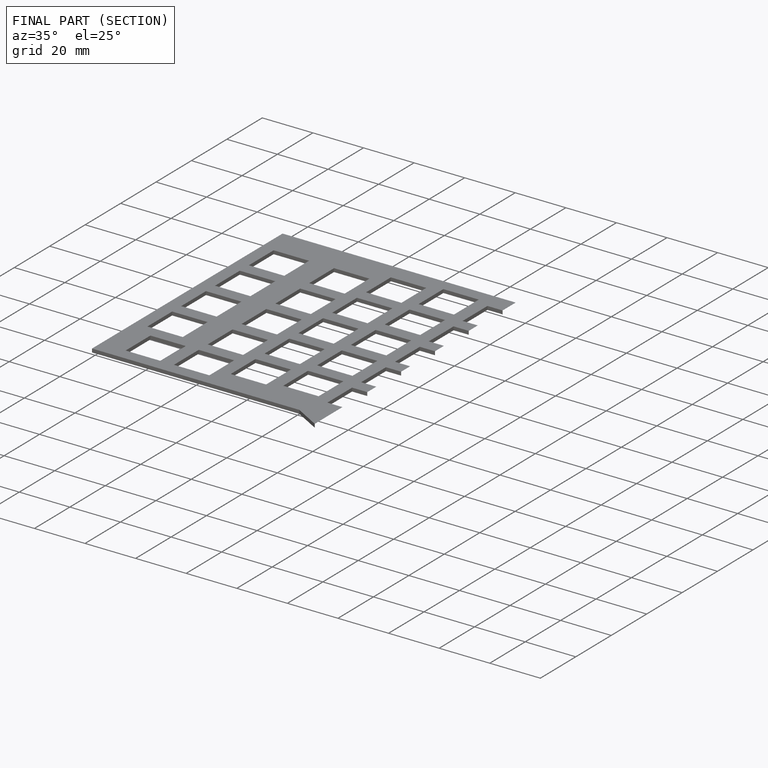
[diagram: finished part — half-section view (interior)]
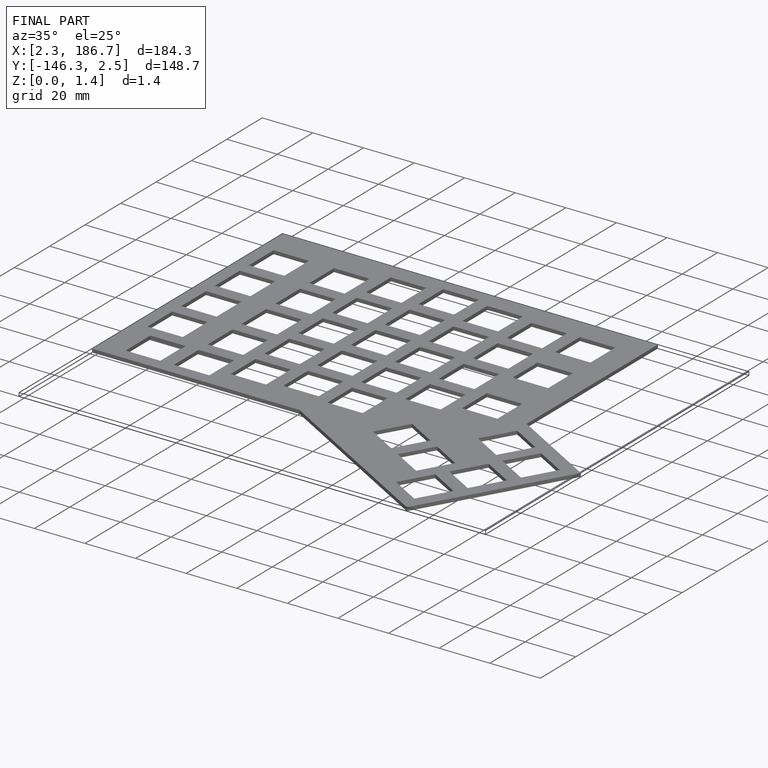
[diagram: finished part — iso view with bounding-box wireframe]
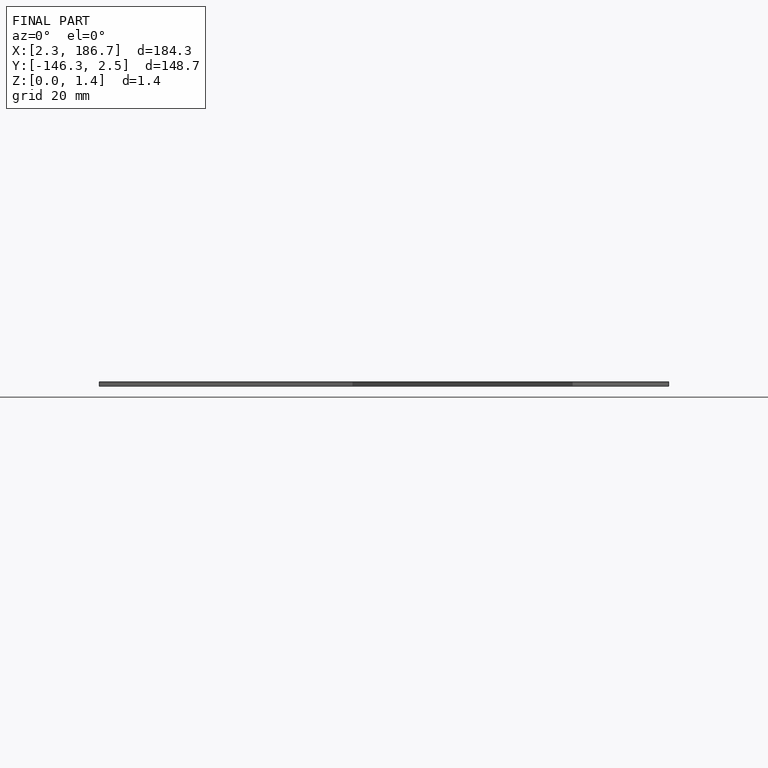
[diagram: finished part — front view with bounding-box wireframe]
